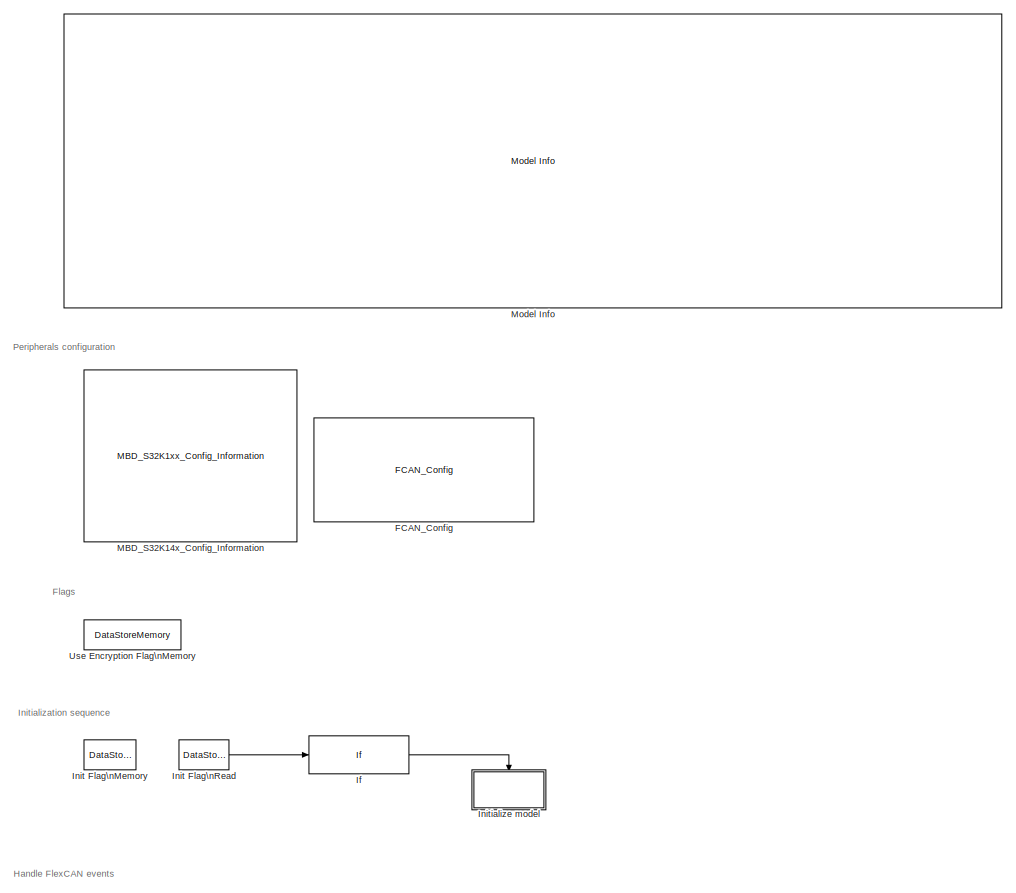
[diagram: root canvas - part 1/2, full width, top band]
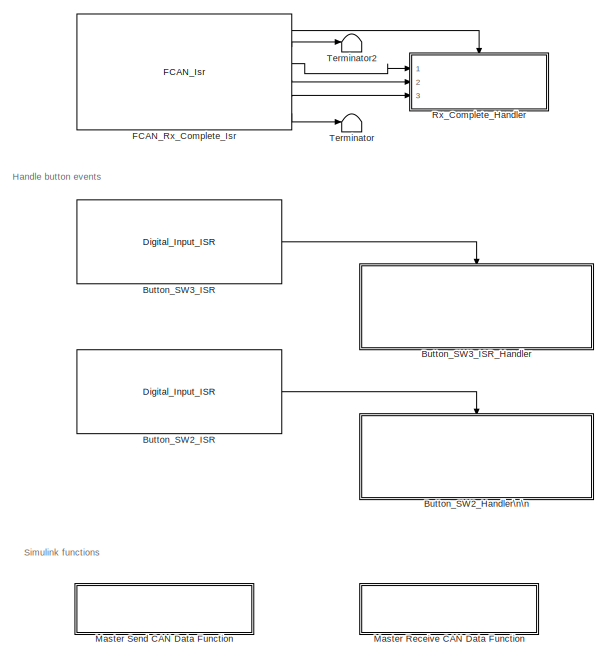
[diagram: root canvas - part 2/2, bottom left region]
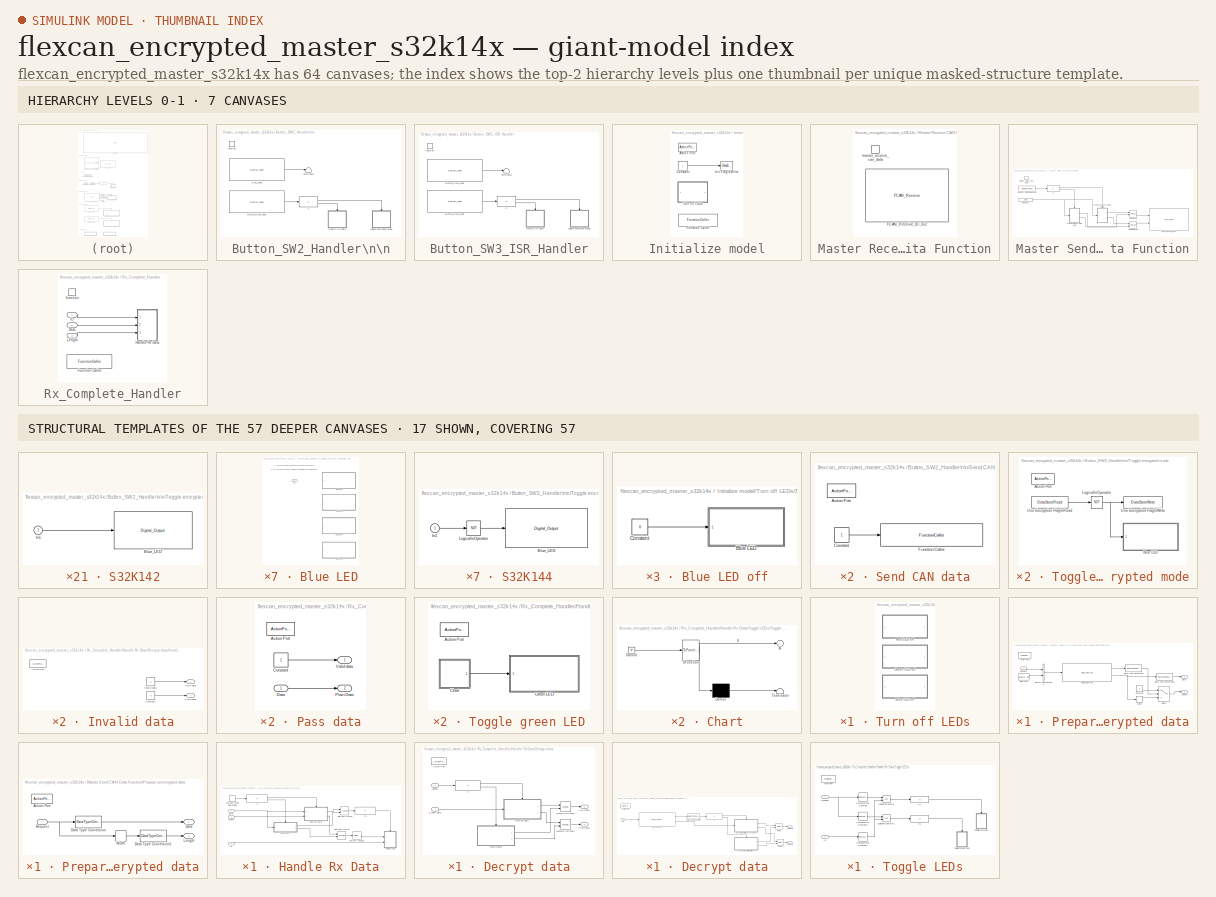
[diagram: thumbnail index - top-2 hierarchy levels (7 canvases) + 17 structural-template representatives of the remaining 57 canvases]
MODEL flexcan_encrypted_master_s32k14x
KIND model
CONFIG InitFcn = mbd_s32k_consistency_checks(bdroot(gcs));
CONFIG PreLoadFcn = mbd_s32k_examples_preload_cbk;
BLOCK [SubSystem] Button_SW2_Handler\n\n
  Ports = [0, 0, 0, 1]
  RequestExecContextInheritance = off
  SID = 522
  Variant = off
BLOCK [Reference] Button_SW2_Handler\n\n/Button_SW3_Input  REF=mbd_s32k1xx_ec_toolbox/GPIO Blocks/Digital_Input
  Ports = [0, 1]
  SID = 959
  SourceBlock = mbd_s32k1xx_ec_toolbox/GPIO Blocks/Digital_Input
  SourceType = gpio_s32k_input
  gpio_pin = PTC13: [PTC13 | Port C I/O]
  passive_filter = off
  pull_resistor = None
BLOCK [If] Button_SW2_Handler\n\n/If
  IfExpression = u1 == 1
  Ports = [1, 2]
  SID = 960
BLOCK [Reference] Button_SW2_Handler\n\n/SW2_Input  REF=mbd_s32k1xx_ec_toolbox/GPIO Blocks/Digital_Input
  Ports = [0, 1]
  SID = 665
  SourceBlock = mbd_s32k1xx_ec_toolbox/GPIO Blocks/Digital_Input
  SourceType = gpio_s32k_input
  gpio_pin = PTC12: [PTC12 | Port C I/O]
  passive_filter = off
  pull_resistor = None
BLOCK [SubSystem] Button_SW2_Handler\n\n/Send CAN data
  Ports = [0, 0, 0, 0, 0, 0, 0, 1]
  RequestExecContextInheritance = off
  SID = 961
  Variant = off
BLOCK [ActionPort] Button_SW2_Handler\n\n/Send CAN data/Action Port
  SID = 962
BLOCK [Constant] Button_SW2_Handler\n\n/Send CAN data/Constant
  OutDataTypeStr = uint8
  SID = 963
BLOCK [FunctionCaller] Button_SW2_Handler\n\n/Send CAN data/Function Caller
  FunctionPrototype = master_send_can_data(Request)
  InputArgumentSpecifications = uint8(1)
  Ports = [1]
  SID = 964
BLOCK [Terminator] Button_SW2_Handler\n\n/Terminator
  SID = 666
BLOCK [SubSystem] Button_SW2_Handler\n\n/Toggle encrypted mode
  Ports = [0, 0, 0, 0, 0, 0, 0, 1]
  RequestExecContextInheritance = off
  SID = 1113
  Variant = off
BLOCK [ActionPort] Button_SW2_Handler\n\n/Toggle encrypted mode/Action Port
  SID = 1114
BLOCK [SubSystem] Button_SW2_Handler\n\n/Toggle encrypted mode/Blue LED
  Ports = [1]
  RequestExecContextInheritance = off
  SID = 1115
  Variant = on
BLOCK [Inport] Button_SW2_Handler\n\n/Toggle encrypted mode/Blue LED/In1
  IconDisplay = Port number
  SID = 1116
BLOCK [SubSystem] Button_SW2_Handler\n\n/Toggle encrypted mode/Blue LED/S32K142
  Ports = [1]
  RequestExecContextInheritance = off
  SID = 1117
  Variant = off
  VariantControl = VSS_S32k142
BLOCK [Reference] Button_SW2_Handler\n\n/Toggle encrypted mode/Blue LED/S32K142/Blue_LED  REF=mbd_s32k1xx_ec_toolbox/GPIO Blocks/Digital_Output
  Ports = [1]
  SID = 1119
  SourceBlock = mbd_s32k1xx_ec_toolbox/GPIO Blocks/Digital_Output
  SourceType = gpio_s32k_output
  drive_strength = Low
  gpio_pin = PTD0: [PTD0 | Port D I/O]
  init_val = Low
BLOCK [Inport] Button_SW2_Handler\n\n/Toggle encrypted mode/Blue LED/S32K142/In1
  IconDisplay = Port number
  SID = 1118
BLOCK [SubSystem] Button_SW2_Handler\n\n/Toggle encrypted mode/Blue LED/S32K144
  Ports = [1]
  RequestExecContextInheritance = off
  SID = 1120
  Variant = off
  VariantControl = VSS_S32k144
BLOCK [Reference] Button_SW2_Handler\n\n/Toggle encrypted mode/Blue LED/S32K144/Blue_LED  REF=mbd_s32k1xx_ec_toolbox/GPIO Blocks/Digital_Output
  Ports = [1]
  SID = 1122
  SourceBlock = mbd_s32k1xx_ec_toolbox/GPIO Blocks/Digital_Output
  SourceType = gpio_s32k_output
  drive_strength = Low
  gpio_pin = PTD0: [PTD0 | Port D I/O]
  init_val = Low
BLOCK [Inport] Button_SW2_Handler\n\n/Toggle encrypted mode/Blue LED/S32K144/In1
  IconDisplay = Port number
  SID = 1121
BLOCK [Logic] Button_SW2_Handler\n\n/Toggle encrypted mode/Blue LED/S32K144/Logical\nOperator
  AllPortsSameDT = off
  Operator = NOT
  OutDataTypeStr = boolean
  Ports = [1, 1]
  SID = 1123
BLOCK [SubSystem] Button_SW2_Handler\n\n/Toggle encrypted mode/Blue LED/S32K146
  Ports = [1]
  RequestExecContextInheritance = off
  SID = 1124
  Variant = off
  VariantControl = VSS_S32k146
BLOCK [Reference] Button_SW2_Handler\n\n/Toggle encrypted mode/Blue LED/S32K146/Blue_LED  REF=mbd_s32k1xx_ec_toolbox/GPIO Blocks/Digital_Output
  Ports = [1]
  SID = 1126
  SourceBlock = mbd_s32k1xx_ec_toolbox/GPIO Blocks/Digital_Output
  SourceType = gpio_s32k_output
  drive_strength = Low
  gpio_pin = PTD0: [PTD0 | Port D I/O]
  init_val = Low
BLOCK [Inport] Button_SW2_Handler\n\n/Toggle encrypted mode/Blue LED/S32K146/In1
  IconDisplay = Port number
  SID = 1125
BLOCK [SubSystem] Button_SW2_Handler\n\n/Toggle encrypted mode/Blue LED/S32K148
  Ports = [1]
  RequestExecContextInheritance = off
  SID = 1127
  Variant = off
  VariantControl = VSS_S32k148
BLOCK [Reference] Button_SW2_Handler\n\n/Toggle encrypted mode/Blue LED/S32K148/Blue_LED  REF=mbd_s32k1xx_ec_toolbox/GPIO Blocks/Digital_Output
  Ports = [1]
  SID = 1129
  SourceBlock = mbd_s32k1xx_ec_toolbox/GPIO Blocks/Digital_Output
  SourceType = gpio_s32k_output
  drive_strength = Low
  gpio_pin = PTE23: [PTE23 | Port E I/O]
  init_val = Low
BLOCK [Inport] Button_SW2_Handler\n\n/Toggle encrypted mode/Blue LED/S32K148/In1
  IconDisplay = Port number
  SID = 1128
BLOCK [Logic] Button_SW2_Handler\n\n/Toggle encrypted mode/Logical\nOperator
  AllPortsSameDT = off
  Operator = NOT
  OutDataTypeStr = boolean
  Ports = [1, 1]
  SID = 1131
BLOCK [DataStoreRead] Button_SW2_Handler\n\n/Toggle encrypted mode/Use Encryption Flag\nRead
  DataStoreName = use_encryption_flag
  Ports = [0, 1]
  SID = 1132
BLOCK [DataStoreWrite] Button_SW2_Handler\n\n/Toggle encrypted mode/Use Encryption Flag\nWrite
  DataStoreName = use_encryption_flag
  Ports = [1]
  SID = 1133
BLOCK [TriggerPort] Button_SW2_Handler\n\n/function
  Ports = []
  SID = 523
  StatesWhenEnabling = held
  TriggerType = function-call
  VariantControl = Variant
BLOCK [Reference] Button_SW2_ISR  REF=mbd_s32k1xx_ec_toolbox/GPIO Blocks/Digital_Input_ISR
  Ports = [0, 1]
  SID = 481
  SourceBlock = mbd_s32k1xx_ec_toolbox/GPIO Blocks/Digital_Input_ISR
  SourceType = gpi_s32k_isr
  gpio_pin = PTC12: [PTC12 | Port C I/O]
  irqc = on rising-edge
  prio = 15
BLOCK [Reference] Button_SW3_ISR  REF=mbd_s32k1xx_ec_toolbox/GPIO Blocks/Digital_Input_ISR
  Ports = [0, 1]
  SID = 480
  SourceBlock = mbd_s32k1xx_ec_toolbox/GPIO Blocks/Digital_Input_ISR
  SourceType = gpi_s32k_isr
  gpio_pin = PTC13: [PTC13 | Port C I/O]
  irqc = on rising-edge
  prio = 15
BLOCK [SubSystem] Button_SW3_ISR_Handler
  Ports = [0, 0, 0, 1]
  RequestExecContextInheritance = off
  SID = 483
  Variant = off
BLOCK [Reference] Button_SW3_ISR_Handler/Button_SW2_Input  REF=mbd_s32k1xx_ec_toolbox/GPIO Blocks/Digital_Input
  Ports = [0, 1]
  SID = 542
  SourceBlock = mbd_s32k1xx_ec_toolbox/GPIO Blocks/Digital_Input
  SourceType = gpio_s32k_input
  gpio_pin = PTC12: [PTC12 | Port C I/O]
  passive_filter = off
  pull_resistor = None
BLOCK [Reference] Button_SW3_ISR_Handler/Button_SW3_Input  REF=mbd_s32k1xx_ec_toolbox/GPIO Blocks/Digital_Input
  Ports = [0, 1]
  SID = 663
  SourceBlock = mbd_s32k1xx_ec_toolbox/GPIO Blocks/Digital_Input
  SourceType = gpio_s32k_input
  gpio_pin = PTC13: [PTC13 | Port C I/O]
  passive_filter = off
  pull_resistor = None
BLOCK [If] Button_SW3_ISR_Handler/If
  IfExpression = u1 == 1
  Ports = [1, 2]
  SID = 543
BLOCK [SubSystem] Button_SW3_ISR_Handler/Send CAN data
  Ports = [0, 0, 0, 0, 0, 0, 0, 1]
  RequestExecContextInheritance = off
  SID = 810
  Variant = off
BLOCK [ActionPort] Button_SW3_ISR_Handler/Send CAN data/Action Port
  SID = 811
BLOCK [Constant] Button_SW3_ISR_Handler/Send CAN data/Constant
  OutDataTypeStr = uint8
  SID = 807
  Value = 0
BLOCK [FunctionCaller] Button_SW3_ISR_Handler/Send CAN data/Function Caller
  FunctionPrototype = master_send_can_data(Request)
  InputArgumentSpecifications = uint8(1)
  Ports = [1]
  SID = 885
BLOCK [Terminator] Button_SW3_ISR_Handler/Terminator
  SID = 664
BLOCK [SubSystem] Button_SW3_ISR_Handler/Toggle encrypted mode
  Ports = [0, 0, 0, 0, 0, 0, 0, 1]
  RequestExecContextInheritance = off
  SID = 1092
  Variant = off
BLOCK [ActionPort] Button_SW3_ISR_Handler/Toggle encrypted mode/Action Port
  SID = 1093
BLOCK [SubSystem] Button_SW3_ISR_Handler/Toggle encrypted mode/Blue LED
  Ports = [1]
  RequestExecContextInheritance = off
  SID = 1094
  Variant = on
BLOCK [Inport] Button_SW3_ISR_Handler/Toggle encrypted mode/Blue LED/In1
  IconDisplay = Port number
  SID = 1095
BLOCK [SubSystem] Button_SW3_ISR_Handler/Toggle encrypted mode/Blue LED/S32K142
  Ports = [1]
  RequestExecContextInheritance = off
  SID = 1096
  Variant = off
  VariantControl = VSS_S32k142
BLOCK [Reference] Button_SW3_ISR_Handler/Toggle encrypted mode/Blue LED/S32K142/Blue_LED  REF=mbd_s32k1xx_ec_toolbox/GPIO Blocks/Digital_Output
  Ports = [1]
  SID = 1098
  SourceBlock = mbd_s32k1xx_ec_toolbox/GPIO Blocks/Digital_Output
  SourceType = gpio_s32k_output
  drive_strength = Low
  gpio_pin = PTD0: [PTD0 | Port D I/O]
  init_val = Low
BLOCK [Inport] Button_SW3_ISR_Handler/Toggle encrypted mode/Blue LED/S32K142/In1
  IconDisplay = Port number
  SID = 1097
BLOCK [SubSystem] Button_SW3_ISR_Handler/Toggle encrypted mode/Blue LED/S32K144
  Ports = [1]
  RequestExecContextInheritance = off
  SID = 1099
  Variant = off
  VariantControl = VSS_S32k144
BLOCK [Reference] Button_SW3_ISR_Handler/Toggle encrypted mode/Blue LED/S32K144/Blue_LED  REF=mbd_s32k1xx_ec_toolbox/GPIO Blocks/Digital_Output
  Ports = [1]
  SID = 1101
  SourceBlock = mbd_s32k1xx_ec_toolbox/GPIO Blocks/Digital_Output
  SourceType = gpio_s32k_output
  drive_strength = Low
  gpio_pin = PTD0: [PTD0 | Port D I/O]
  init_val = Low
BLOCK [Inport] Button_SW3_ISR_Handler/Toggle encrypted mode/Blue LED/S32K144/In1
  IconDisplay = Port number
  SID = 1100
BLOCK [Logic] Button_SW3_ISR_Handler/Toggle encrypted mode/Blue LED/S32K144/Logical\nOperator
  AllPortsSameDT = off
  Operator = NOT
  OutDataTypeStr = boolean
  Ports = [1, 1]
  SID = 1102
BLOCK [SubSystem] Button_SW3_ISR_Handler/Toggle encrypted mode/Blue LED/S32K146
  Ports = [1]
  RequestExecContextInheritance = off
  SID = 1103
  Variant = off
  VariantControl = VSS_S32k146
BLOCK [Reference] Button_SW3_ISR_Handler/Toggle encrypted mode/Blue LED/S32K146/Blue_LED  REF=mbd_s32k1xx_ec_toolbox/GPIO Blocks/Digital_Output
  Ports = [1]
  SID = 1105
  SourceBlock = mbd_s32k1xx_ec_toolbox/GPIO Blocks/Digital_Output
  SourceType = gpio_s32k_output
  drive_strength = Low
  gpio_pin = PTD0: [PTD0 | Port D I/O]
  init_val = Low
BLOCK [Inport] Button_SW3_ISR_Handler/Toggle encrypted mode/Blue LED/S32K146/In1
  IconDisplay = Port number
  SID = 1104
BLOCK [SubSystem] Button_SW3_ISR_Handler/Toggle encrypted mode/Blue LED/S32K148
  Ports = [1]
  RequestExecContextInheritance = off
  SID = 1106
  Variant = off
  VariantControl = VSS_S32k148
BLOCK [Reference] Button_SW3_ISR_Handler/Toggle encrypted mode/Blue LED/S32K148/Blue_LED  REF=mbd_s32k1xx_ec_toolbox/GPIO Blocks/Digital_Output
  Ports = [1]
  SID = 1108
  SourceBlock = mbd_s32k1xx_ec_toolbox/GPIO Blocks/Digital_Output
  SourceType = gpio_s32k_output
  drive_strength = Low
  gpio_pin = PTE23: [PTE23 | Port E I/O]
  init_val = Low
BLOCK [Inport] Button_SW3_ISR_Handler/Toggle encrypted mode/Blue LED/S32K148/In1
  IconDisplay = Port number
  SID = 1107
BLOCK [Logic] Button_SW3_ISR_Handler/Toggle encrypted mode/Logical\nOperator
  AllPortsSameDT = off
  Operator = NOT
  OutDataTypeStr = boolean
  Ports = [1, 1]
  SID = 1110
BLOCK [DataStoreRead] Button_SW3_ISR_Handler/Toggle encrypted mode/Use Encryption Flag\nRead
  DataStoreName = use_encryption_flag
  Ports = [0, 1]
  SID = 1111
BLOCK [DataStoreWrite] Button_SW3_ISR_Handler/Toggle encrypted mode/Use Encryption Flag\nWrite
  DataStoreName = use_encryption_flag
  Ports = [1]
  SID = 1112
BLOCK [TriggerPort] Button_SW3_ISR_Handler/function
  Ports = []
  SID = 487
  StatesWhenEnabling = held
  TriggerType = function-call
  VariantControl = Variant
BLOCK [Reference] FCAN_Config  REF=mbd_s32k1xx_ec_toolbox/Communication Blocks/CAN Blocks/FCAN_Config
  Ports = []
  Priority = 1
  SID = 2
  SourceBlock = mbd_s32k1xx_ec_toolbox/Communication Blocks/CAN Blocks/FCAN_Config
  SourceType = fcan_s32k_config
  bitrate = 500
  bitrate_adv_opts = off
  can_cbt_presdiv = 3
  can_cbt_propseg = 27
  can_cbt_pseg1 = 5
  can_cbt_pseg2 = 5
  can_cbt_rjw = 3
  can_clk_src = Peripheral clock
  can_fd_enable = on
  can_fifo_id_filter = {'0x0', '0x0', '0x0', '0x0', '0x0', '0x0', '0x0', '0x0'}
  can_fifo_id_filter_extended = off
  can_fifo_id_filter_remote = off
  can_fifo_id_format = A
  can_idfilter_extendedid = off
  can_idfilter_id1 = 0
  can_idfilter_id2 = 0
  can_idfilter_remoteframe = off
  can_idfilter_type = Match exact
  can_instance = 0
  can_match_timeout = 1
  can_max_num_mb = 16
  can_mode = Normal mode
  can_multiple_matches_en = off
  can_num_id_filters = 8
  can_num_matches = 1
  can_payload = 8
  can_payloadfilter_dlchigh = 0
  can_payloadfilter_dlclow = 0
  can_payloadfilter_enable = on
  can_payloadfilter_payload1_b0 = 0
  can_payloadfilter_payload1_b1 = 0
  can_payloadfilter_payload1_b2 = 0
  can_payloadfilter_payload1_b3 = 0
  can_payloadfilter_payload1_b4 = 0
  can_payloadfilter_payload1_b5 = 0
  can_payloadfilter_payload1_b6 = 0
  can_payloadfilter_payload1_b7 = 0
  can_payloadfilter_payload2_b0 = 0
  can_payloadfilter_payload2_b1 = 0
  can_payloadfilter_payload2_b2 = 0
  can_payloadfilter_payload2_b3 = 0
  can_payloadfilter_payload2_b4 = 0
  can_payloadfilter_payload2_b5 = 0
  can_payloadfilter_payload2_b6 = 0
  can_payloadfilter_payload2_b7 = 0
  can_payloadfilter_type = Match exact
  can_pn_enable = off
  can_presdiv = 7
  can_propseg = 7
  can_pseg1 = 6
  can_pseg2 = 3
  can_rjw = 3
  can_rx = PTE4: [CAN0_RX | CAN Rx channel]
  can_rxfifo_enable = off
  can_timeout_en = off
  can_tx = PTE5: [CAN0_TX | CAN Tx Channel]
  can_wakeup_match = off
  can_wakeup_timeout = off
  show_adv_opts = on
BLOCK [Reference] FCAN_Rx_Complete_Isr  REF=mbd_s32k1xx_ec_toolbox/Communication Blocks/CAN Blocks/FCAN_Isr
  Ports = [0, 6]
  SID = 86
  SourceBlock = mbd_s32k1xx_ec_toolbox/Communication Blocks/CAN Blocks/FCAN_Isr
  SourceType = fcan_s32k_isr
  can_event = Rx Complete
  can_instance = 0
BLOCK [If] If
  IfExpression = u1 == 0
  Ports = [1, 1]
  SID = 144
  ShowElse = off
BLOCK [DataStoreMemory] Init Flag\nMemory
  DataStoreName = init_flag
  OutDataTypeStr = uint32
  ReadBeforeWriteMsg = warning
  SID = 138
  ShowAdditionalParam = off
  WriteAfterReadMsg = warning
  WriteAfterWriteMsg = warning
BLOCK [DataStoreRead] Init Flag\nRead
  DataStoreName = init_flag
  Ports = [0, 1]
  SID = 139
BLOCK [SubSystem] Initialize model
  Ports = [0, 0, 0, 0, 0, 0, 0, 1]
  RequestExecContextInheritance = off
  SID = 145
  TreatAsAtomicUnit = on
  Variant = off
BLOCK [ActionPort] Initialize model/Action Port
  SID = 147
BLOCK [Constant] Initialize model/Constant
  OutDataTypeStr = uint32
  SID = 462
BLOCK [FunctionCaller] Initialize model/Function Caller
  FunctionPrototype = master_receive_can_data()
  Ports = []
  Priority = 2
  SID = 886
BLOCK [DataStoreWrite] Initialize model/Init Flag\nWrite
  DataStoreName = init_flag
  Ports = [1]
  SID = 461
BLOCK [SubSystem] Initialize model/Turn off LEDs
  Ports = []
  Priority = 1
  RequestExecContextInheritance = off
  SID = 883
  Variant = off
BLOCK [SubSystem] Initialize model/Turn off LEDs/Blue LED off
  Ports = []
  RequestExecContextInheritance = off
  SID = 1038
  Variant = off
BLOCK [SubSystem] Initialize model/Turn off LEDs/Blue LED off/Blue LED
  Ports = [1]
  RequestExecContextInheritance = off
  SID = 1039
  Variant = on
BLOCK [Inport] Initialize model/Turn off LEDs/Blue LED off/Blue LED/In1
  IconDisplay = Port number
  SID = 1040
BLOCK [SubSystem] Initialize model/Turn off LEDs/Blue LED off/Blue LED/S32K142
  Ports = [1]
  RequestExecContextInheritance = off
  SID = 1041
  Variant = off
  VariantControl = VSS_S32k142
BLOCK [Reference] Initialize model/Turn off LEDs/Blue LED off/Blue LED/S32K142/Blue_LED  REF=mbd_s32k1xx_ec_toolbox/GPIO Blocks/Digital_Output
  Ports = [1]
  SID = 1043
  SourceBlock = mbd_s32k1xx_ec_toolbox/GPIO Blocks/Digital_Output
  SourceType = gpio_s32k_output
  drive_strength = Low
  gpio_pin = PTD0: [PTD0 | Port D I/O]
  init_val = Low
BLOCK [Inport] Initialize model/Turn off LEDs/Blue LED off/Blue LED/S32K142/In1
  IconDisplay = Port number
  SID = 1042
BLOCK [SubSystem] Initialize model/Turn off LEDs/Blue LED off/Blue LED/S32K144
  Ports = [1]
  RequestExecContextInheritance = off
  SID = 1044
  Variant = off
  VariantControl = VSS_S32k144
BLOCK [Reference] Initialize model/Turn off LEDs/Blue LED off/Blue LED/S32K144/Blue_LED  REF=mbd_s32k1xx_ec_toolbox/GPIO Blocks/Digital_Output
  Ports = [1]
  SID = 1046
  SourceBlock = mbd_s32k1xx_ec_toolbox/GPIO Blocks/Digital_Output
  SourceType = gpio_s32k_output
  drive_strength = Low
  gpio_pin = PTD0: [PTD0 | Port D I/O]
  init_val = Low
BLOCK [Inport] Initialize model/Turn off LEDs/Blue LED off/Blue LED/S32K144/In1
  IconDisplay = Port number
  SID = 1045
BLOCK [Logic] Initialize model/Turn off LEDs/Blue LED off/Blue LED/S32K144/Logical\nOperator
  AllPortsSameDT = off
  Operator = NOT
  OutDataTypeStr = boolean
  Ports = [1, 1]
  SID = 1047
BLOCK [SubSystem] Initialize model/Turn off LEDs/Blue LED off/Blue LED/S32K146
  Ports = [1]
  RequestExecContextInheritance = off
  SID = 1048
  Variant = off
  VariantControl = VSS_S32k146
BLOCK [Reference] Initialize model/Turn off LEDs/Blue LED off/Blue LED/S32K146/Blue_LED  REF=mbd_s32k1xx_ec_toolbox/GPIO Blocks/Digital_Output
  Ports = [1]
  SID = 1050
  SourceBlock = mbd_s32k1xx_ec_toolbox/GPIO Blocks/Digital_Output
  SourceType = gpio_s32k_output
  drive_strength = Low
  gpio_pin = PTD0: [PTD0 | Port D I/O]
  init_val = Low
BLOCK [Inport] Initialize model/Turn off LEDs/Blue LED off/Blue LED/S32K146/In1
  IconDisplay = Port number
  SID = 1049
BLOCK [SubSystem] Initialize model/Turn off LEDs/Blue LED off/Blue LED/S32K148
  Ports = [1]
  RequestExecContextInheritance = off
  SID = 1051
  Variant = off
  VariantControl = VSS_S32k148
BLOCK [Reference] Initialize model/Turn off LEDs/Blue LED off/Blue LED/S32K148/Blue_LED  REF=mbd_s32k1xx_ec_toolbox/GPIO Blocks/Digital_Output
  Ports = [1]
  SID = 1053
  SourceBlock = mbd_s32k1xx_ec_toolbox/GPIO Blocks/Digital_Output
  SourceType = gpio_s32k_output
  drive_strength = Low
  gpio_pin = PTE23: [PTE23 | Port E I/O]
  init_val = Low
BLOCK [Inport] Initialize model/Turn off LEDs/Blue LED off/Blue LED/S32K148/In1
  IconDisplay = Port number
  SID = 1052
BLOCK [Constant] Initialize model/Turn off LEDs/Blue LED off/Constant
  OutDataTypeStr = boolean
  SID = 1055
  Value = 0
BLOCK [SubSystem] Initialize model/Turn off LEDs/Green LED off
  Ports = []
  RequestExecContextInheritance = off
  SID = 1056
  Variant = off
BLOCK [Constant] Initialize model/Turn off LEDs/Green LED off/Constant
  OutDataTypeStr = boolean
  SID = 1057
  Value = 0
BLOCK [SubSystem] Initialize model/Turn off LEDs/Green LED off/Green LED
  Ports = [1]
  RequestExecContextInheritance = off
  SID = 1058
  Variant = on
BLOCK [Inport] Initialize model/Turn off LEDs/Green LED off/Green LED/In1
  IconDisplay = Port number
  SID = 1059
BLOCK [SubSystem] Initialize model/Turn off LEDs/Green LED off/Green LED/S32K142
  Ports = [1]
  RequestExecContextInheritance = off
  SID = 1060
  Variant = off
  VariantControl = VSS_S32k142
BLOCK [Reference] Initialize model/Turn off LEDs/Green LED off/Green LED/S32K142/Green_LED  REF=mbd_s32k1xx_ec_toolbox/GPIO Blocks/Digital_Output
  Ports = [1]
  SID = 1062
  SourceBlock = mbd_s32k1xx_ec_toolbox/GPIO Blocks/Digital_Output
  SourceType = gpio_s32k_output
  drive_strength = Low
  gpio_pin = PTD16: [PTD16 | Port D I/O]
  init_val = Low
BLOCK [Inport] Initialize model/Turn off LEDs/Green LED off/Green LED/S32K142/In1
  IconDisplay = Port number
  SID = 1061
BLOCK [SubSystem] Initialize model/Turn off LEDs/Green LED off/Green LED/S32K144
  Ports = [1]
  RequestExecContextInheritance = off
  SID = 1063
  Variant = off
  VariantControl = VSS_S32k144
BLOCK [Reference] Initialize model/Turn off LEDs/Green LED off/Green LED/S32K144/Green_LED  REF=mbd_s32k1xx_ec_toolbox/GPIO Blocks/Digital_Output
  Ports = [1]
  SID = 1065
  SourceBlock = mbd_s32k1xx_ec_toolbox/GPIO Blocks/Digital_Output
  SourceType = gpio_s32k_output
  drive_strength = Low
  gpio_pin = PTD16: [PTD16 | Port D I/O]
  init_val = Low
BLOCK [Inport] Initialize model/Turn off LEDs/Green LED off/Green LED/S32K144/In1
  IconDisplay = Port number
  SID = 1064
BLOCK [Logic] Initialize model/Turn off LEDs/Green LED off/Green LED/S32K144/Logical\nOperator
  AllPortsSameDT = off
  Operator = NOT
  OutDataTypeStr = boolean
  Ports = [1, 1]
  SID = 1066
BLOCK [SubSystem] Initialize model/Turn off LEDs/Green LED off/Green LED/S32K146
  Ports = [1]
  RequestExecContextInheritance = off
  SID = 1067
  Variant = off
  VariantControl = VSS_S32k146
BLOCK [Reference] Initialize model/Turn off LEDs/Green LED off/Green LED/S32K146/Green_LED  REF=mbd_s32k1xx_ec_toolbox/GPIO Blocks/Digital_Output
  Ports = [1]
  SID = 1069
  SourceBlock = mbd_s32k1xx_ec_toolbox/GPIO Blocks/Digital_Output
  SourceType = gpio_s32k_output
  drive_strength = Low
  gpio_pin = PTD16: [PTD16 | Port D I/O]
  init_val = Low
BLOCK [Inport] Initialize model/Turn off LEDs/Green LED off/Green LED/S32K146/In1
  IconDisplay = Port number
  SID = 1068
BLOCK [SubSystem] Initialize model/Turn off LEDs/Green LED off/Green LED/S32K148
  Ports = [1]
  RequestExecContextInheritance = off
  SID = 1070
  Variant = off
  VariantControl = VSS_S32k148
BLOCK [Reference] Initialize model/Turn off LEDs/Green LED off/Green LED/S32K148/Green_LED  REF=mbd_s32k1xx_ec_toolbox/GPIO Blocks/Digital_Output
  Ports = [1]
  SID = 1072
  SourceBlock = mbd_s32k1xx_ec_toolbox/GPIO Blocks/Digital_Output
  SourceType = gpio_s32k_output
  drive_strength = Low
  gpio_pin = PTE22: [PTE22 | Port E I/O]
  init_val = Low
BLOCK [Inport] Initialize model/Turn off LEDs/Green LED off/Green LED/S32K148/In1
  IconDisplay = Port number
  SID = 1071
BLOCK [SubSystem] Initialize model/Turn off LEDs/Red LED off
  Ports = []
  RequestExecContextInheritance = off
  SID = 1074
  Variant = off
BLOCK [Constant] Initialize model/Turn off LEDs/Red LED off/Constant
  OutDataTypeStr = boolean
  SID = 1075
  Value = 0
BLOCK [SubSystem] Initialize model/Turn off LEDs/Red LED off/Red LED
  Ports = [1]
  RequestExecContextInheritance = off
  SID = 1076
  Variant = on
BLOCK [Inport] Initialize model/Turn off LEDs/Red LED off/Red LED/In1
  IconDisplay = Port number
  SID = 1077
BLOCK [SubSystem] Initialize model/Turn off LEDs/Red LED off/Red LED/S32K142
  Ports = [1]
  RequestExecContextInheritance = off
  SID = 1078
  Variant = off
  VariantControl = VSS_S32k142
BLOCK [Inport] Initialize model/Turn off LEDs/Red LED off/Red LED/S32K142/In1
  IconDisplay = Port number
  SID = 1079
BLOCK [Reference] Initialize model/Turn off LEDs/Red LED off/Red LED/S32K142/Red_LED  REF=mbd_s32k1xx_ec_toolbox/GPIO Blocks/Digital_Output
  Ports = [1]
  SID = 1080
  SourceBlock = mbd_s32k1xx_ec_toolbox/GPIO Blocks/Digital_Output
  SourceType = gpio_s32k_output
  drive_strength = Low
  gpio_pin = PTD15: [PTD15 | Port D I/O]
  init_val = Low
BLOCK [SubSystem] Initialize model/Turn off LEDs/Red LED off/Red LED/S32K144
  Ports = [1]
  RequestExecContextInheritance = off
  SID = 1081
  Variant = off
  VariantControl = VSS_S32k144
BLOCK [Inport] Initialize model/Turn off LEDs/Red LED off/Red LED/S32K144/In1
  IconDisplay = Port number
  SID = 1082
BLOCK [Logic] Initialize model/Turn off LEDs/Red LED off/Red LED/S32K144/Logical\nOperator
  AllPortsSameDT = off
  Operator = NOT
  OutDataTypeStr = boolean
  Ports = [1, 1]
  SID = 1083
BLOCK [Reference] Initialize model/Turn off LEDs/Red LED off/Red LED/S32K144/Red_LED  REF=mbd_s32k1xx_ec_toolbox/GPIO Blocks/Digital_Output
  Ports = [1]
  SID = 1084
  SourceBlock = mbd_s32k1xx_ec_toolbox/GPIO Blocks/Digital_Output
  SourceType = gpio_s32k_output
  drive_strength = Low
  gpio_pin = PTD15: [PTD15 | Port D I/O]
  init_val = Low
BLOCK [SubSystem] Initialize model/Turn off LEDs/Red LED off/Red LED/S32K146
  Ports = [1]
  RequestExecContextInheritance = off
  SID = 1085
  Variant = off
  VariantControl = VSS_S32k146
BLOCK [Inport] Initialize model/Turn off LEDs/Red LED off/Red LED/S32K146/In1
  IconDisplay = Port number
  SID = 1086
BLOCK [Reference] Initialize model/Turn off LEDs/Red LED off/Red LED/S32K146/Red_LED  REF=mbd_s32k1xx_ec_toolbox/GPIO Blocks/Digital_Output
  Ports = [1]
  SID = 1087
  SourceBlock = mbd_s32k1xx_ec_toolbox/GPIO Blocks/Digital_Output
  SourceType = gpio_s32k_output
  drive_strength = Low
  gpio_pin = PTD15: [PTD15 | Port D I/O]
  init_val = Low
BLOCK [SubSystem] Initialize model/Turn off LEDs/Red LED off/Red LED/S32K148
  Ports = [1]
  RequestExecContextInheritance = off
  SID = 1088
  Variant = off
  VariantControl = VSS_S32k148
BLOCK [Inport] Initialize model/Turn off LEDs/Red LED off/Red LED/S32K148/In1
  IconDisplay = Port number
  SID = 1089
BLOCK [Reference] Initialize model/Turn off LEDs/Red LED off/Red LED/S32K148/Red_LED  REF=mbd_s32k1xx_ec_toolbox/GPIO Blocks/Digital_Output
  Ports = [1]
  SID = 1090
  SourceBlock = mbd_s32k1xx_ec_toolbox/GPIO Blocks/Digital_Output
  SourceType = gpio_s32k_output
  drive_strength = Low
  gpio_pin = PTE21: [PTE21 | Port E I/O]
  init_val = Low
BLOCK [Reference] MBD_S32K14x_Config_Information  REF=mbd_s32k1xx_ec_toolbox/MBD_S32K1xx_Config_Information
  ADC_PcrCheckEnDis = on
  AMMCLIB_PcrCheckEnDis = on
  CMP_PcrCheckEnDis = on
  CSEc_PcrCheckEnDis = on
  ConfigParams_PcrCheckEnDis = on
  FM_PcrCheckEnDis = on
  FTM_Dual_Edge_Inputs_PcrCheckEnDis = on
  FTM_Hall_Sensor_Inputs_PcrCheckEnDis = on
  FTM_Input_Edge_Inputs_PcrCheckEnDis = on
  FTM_PWM_PcrCheckEnDis = on
  FTM_Quadrature_Inputs_PcrCheckEnDis = on
  FlexCAN_PcrCheckEnDis = on
  FlexIO_PcrCheckEnDis = on
  GPIO_InputPcrCheckEnDis = on
  GPIO_OutputPcrCheckEnDis = on
  LIN_PcrCheckEnDis = on
  LPI2C_PcrCheckEnDis = on
  LPSPI_PcrCheckEnDis = on
  LPTMR_PcrCheckEnDis = on
  LPUART_PcrCheckEnDis = on
  ModelRef_PcrCheckEnDis = on
  PDB0_PcrCheckEnDis = on
  PIT_PcrCheckEnDis = on
  Ports = []
  Profile_PcrCheckEnDis = on
  RTC_PcrCheckEnDis = on
  SBC_PcrCheckEnDis = on
  SID = 1
  SourceBlock = mbd_s32k1xx_ec_toolbox/MBD_S32K1xx_Config_Information
  SourceType = MBDTBX_EC_S32K
  WDOG_PcrCheckEnDis = on
  config_params = []
  disp_str = Target : S32K144-64KB_SRAM\nPackage : 100-pin\nSystem clock : 80 MHz\nXTAL clock : External 8 MHz\nCompiler : GCC\nTarget Type : FLASH\nDownload Code after build : (COM1, 57600)\nStep Tick Interrupt Priority : 15
  ds_import_enable = on
  eDMA_PcrCheckEnDis = on
  gcc_target_assemble_opts = -mcpu=cortex-m4 -mthumb -mfloat-abi=hard -mfpu=fpv4-sp-d16 -g
  gcc_target_compile_opts = -mcpu=cortex-m4 -mthumb -mfloat-abi=hard -mfpu=fpv4-sp-d16 -O1 -g -gstrict-dwarf
  gcc_target_default_lcf = on
  gcc_target_link_opts = -mcpu=cortex-m4 -mthumb -mfloat-abi=hard -mfpu=fpv4-sp-d16
  gcc_target_user_lcf = S32K144_64_flash.ld
  ghs_target_assemble_opts = -cpu=cortexm4f -fpu=vfpv4_d16
  ghs_target_compile_opts = -cpu=cortexm4f -thumb -DARM_MATH_CM4 -fpu=vfpv4_d16 -fsingle -Ogeneral -Wundef -Wimplicit-int -Wshadow -Wtrigraphs --no_commons --gnu_asm -gnu99 -gdwarf-2 -G
  ghs_target_default_lcf = off
  ghs_target_link_opts = -cpu=cortexm4f -thumb -fpu=vfpv4_d16
  ghs_target_user_lcf = S32K144_64_flash.ld
  iar_target_assemble_opts = --cpu Cortex-M4F --thumb --fpu VFPv4_sp
  iar_target_compile_opts = --cpu=Cortex-M4F --thumb --fpu=VFPv4_sp -Ol -e --debug --dlib_config normal
  iar_target_default_lcf = off
  iar_target_link_opts = --no_exceptions --vfe --inline
  iar_target_user_lcf = S32K144_64_flash.icf
  mbdt_ver = 0
  mcu_steptick_prio = 15
  mcu_steptick_timer = LPIT Channel 0
  mcu_system_clock_freq = 80
  mcu_target_name = S32K144
  mcu_target_package = 100-LQFP
  mcu_target_sram_size = 64KB
  mcu_xtal_freq = External 8
  pil_download_enable = off
  pil_download_rate = 57600
  pil_opensda_drive = Custom
  pil_opensda_drive_custom = D
  pil_uart_instance = 0
  pil_uart_rx = PTA2: [LPUART0_RX | Receive]
  pil_uart_tx = PTA3: [LPUART0_TX | Transmit]
  rbl_com_port = Custom
  rbl_com_port_custom = COM1
  rbl_download_enable = off
  rbl_download_interface = OpenSDA
  rbl_restart_request = off
  rbl_start_delay = 5000000
  target_compiler = GCC
  target_memory = FLASH
BLOCK [SubSystem] Master Receive CAN Data Function
  Ports = [0, 0, 0, 1]
  RequestExecContextInheritance = off
  SID = 852
  TreatAsAtomicUnit = on
  Variant = off
BLOCK [Reference] Master Receive CAN Data Function/FCAN_Receive_ID_0x2  REF=mbd_s32k1xx_ec_toolbox/Communication Blocks/CAN Blocks/FCAN_Receive
  Ports = []
  SID = 197
  SourceBlock = mbd_s32k1xx_ec_toolbox/Communication Blocks/CAN Blocks/FCAN_Receive
  SourceType = fcan_s32k_receive
  can_extended_id = off
  can_fd_enable = on
  can_id = 2
  can_instance = 0
  can_is_remote = off
  can_mb_idx = 0
  can_mode = Non-blocking
  can_msg_mask = FFFFFFFF
  can_timeout_ms = 0
  can_use_rxfifo = off
  show_adv_opts = on
BLOCK [TriggerPort] Master Receive CAN Data Function/master_receive_can_data
  FunctionName = master_receive_can_data
  IsSimulinkFunction = on
  Ports = []
  SID = 853
  StatesWhenEnabling = held
  TriggerType = function-call
  VariantControl = Variant
BLOCK [SubSystem] Master Send CAN Data Function
  Ports = [0, 0, 0, 1]
  RequestExecContextInheritance = off
  SID = 841
  TreatAsAtomicUnit = on
  Variant = off
BLOCK [Merge] Master Send CAN Data Function/Data Merge
  AllowUnequalInputPortWidths = on
  Ports = [2, 1]
  SID = 801
BLOCK [Reference] Master Send CAN Data Function/FCAN_Send_ID_0x1  REF=mbd_s32k1xx_ec_toolbox/Communication Blocks/CAN Blocks/FCAN_Send
  Ports = [2]
  SID = 828
  SourceBlock = mbd_s32k1xx_ec_toolbox/Communication Blocks/CAN Blocks/FCAN_Send
  SourceType = fcan_s32k_send
  can_enable_brs = on
  can_extended_id = off
  can_fd_enable = on
  can_fd_padding = 0
  can_id = 1
  can_instance = 0
  can_is_remote = off
  can_mb_idx = 1
  can_mode = Non-blocking
  can_timeout_ms = 0
  show_adv_opts = on
BLOCK [If] Master Send CAN Data Function/If
  IfExpression = u1 == 0
  Ports = [1, 2]
  SID = 507
BLOCK [Merge] Master Send CAN Data Function/Length Merge
  Ports = [2, 1]
  SID = 802
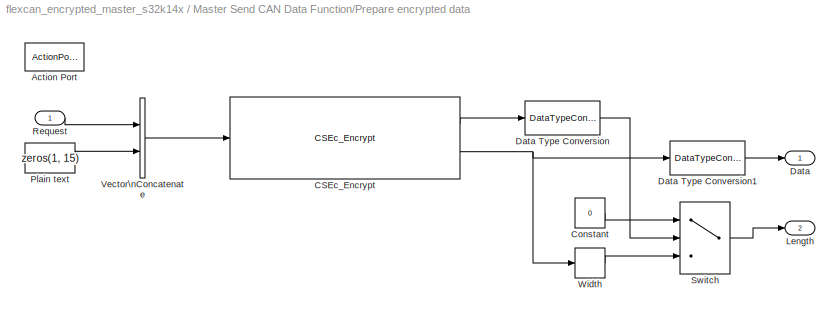
BLOCK [SubSystem] Master Send CAN Data Function/Prepare encrypted data
  Ports = [1, 2, 0, 0, 0, 0, 0, 1]
  RequestExecContextInheritance = off
  SID = 508
  Variant = off
BLOCK [ActionPort] Master Send CAN Data Function/Prepare encrypted data/Action Port
  SID = 509
BLOCK [Reference] Master Send CAN Data Function/Prepare encrypted data/CSEc_Encrypt  REF=mbd_s32k1xx_ec_toolbox/Core and System Blocks/CSEc Blocks/CSEc_Encrypt
  Ports = [1, 2]
  Priority = 2
  SID = 482
  SourceBlock = mbd_s32k1xx_ec_toolbox/Core and System Blocks/CSEc Blocks/CSEc_Encrypt
  SourceType = csec_s32k_encrypt
  csec_key_id = KEY_1
  csec_mode = Electronic Codebook (ECB)
  csec_timeout = 1
BLOCK [Constant] Master Send CAN Data Function/Prepare encrypted data/Constant
  OutDataTypeStr = uint8
  SID = 799
  Value = 0
BLOCK [Outport] Master Send CAN Data Function/Prepare encrypted data/Data
  IconDisplay = Port number
  SID = 772
BLOCK [DataTypeConversion] Master Send CAN Data Function/Prepare encrypted data/Data Type Conversion
  OutDataTypeStr = uint32
  RndMeth = Floor
  SID = 490
  SaturateOnIntegerOverflow = off
BLOCK [DataTypeConversion] Master Send CAN Data Function/Prepare encrypted data/Data Type Conversion1
  OutDataTypeStr = uint8
  RndMeth = Floor
  SID = 832
  SaturateOnIntegerOverflow = off
BLOCK [Outport] Master Send CAN Data Function/Prepare encrypted data/Length
  IconDisplay = Port number
  Port = 2
  SID = 773
BLOCK [Constant] Master Send CAN Data Function/Prepare encrypted data/Plain text
  OutDataTypeStr = uint8
  SID = 488
  Value = zeros(1, 15)
BLOCK [Inport] Master Send CAN Data Function/Prepare encrypted data/Request
  IconDisplay = Port number
  SID = 781
BLOCK [Switch] Master Send CAN Data Function/Prepare encrypted data/Switch
  Criteria = u2 ~= 0
  InputSameDT = off
  SID = 798
  SaturateOnIntegerOverflow = off
BLOCK [Concatenate] Master Send CAN Data Function/Prepare encrypted data/Vector\nConcatenate
  Ports = [2, 1]
  Priority = 1
  SID = 803
BLOCK [Width] Master Send CAN Data Function/Prepare encrypted data/Width
  DataType = uint8
  SID = 754
BLOCK [SubSystem] Master Send CAN Data Function/Prepare unencrypted data
  Ports = [1, 2, 0, 0, 0, 0, 0, 1]
  RequestExecContextInheritance = off
  SID = 510
  Variant = off
BLOCK [ActionPort] Master Send CAN Data Function/Prepare unencrypted data/Action Port
  SID = 511
BLOCK [Outport] Master Send CAN Data Function/Prepare unencrypted data/Data
  IconDisplay = Port number
  SID = 769
BLOCK [DataTypeConversion] Master Send CAN Data Function/Prepare unencrypted data/Data Type Conversion
  OutDataTypeStr = uint8
  RndMeth = Floor
  SID = 831
  SaturateOnIntegerOverflow = off
BLOCK [DataTypeConversion] Master Send CAN Data Function/Prepare unencrypted data/Data Type Conversion1
  OutDataTypeStr = uint8
  RndMeth = Floor
  SID = 849
  SaturateOnIntegerOverflow = off
BLOCK [Outport] Master Send CAN Data Function/Prepare unencrypted data/Length
  IconDisplay = Port number
  Port = 2
  SID = 770
BLOCK [Inport] Master Send CAN Data Function/Prepare unencrypted data/Request
  IconDisplay = Port number
  SID = 787
BLOCK [Width] Master Send CAN Data Function/Prepare unencrypted data/Width
  DataType = uint8
  SID = 848
BLOCK [ArgIn] Master Send CAN Data Function/Request
  ArgumentName = Request
  DisableCoverage = on
  OutDataTypeStr = uint8
  SID = 843
BLOCK [DataStoreRead] Master Send CAN Data Function/Use Encryption Flag\nRead
  DataStoreName = use_encryption_flag
  Ports = [0, 1]
  SID = 506
BLOCK [TriggerPort] Master Send CAN Data Function/master_send_can_data
  FunctionName = master_send_can_data
  IsSimulinkFunction = on
  Ports = []
  SID = 842
  StatesWhenEnabling = held
  TriggerType = function-call
  VariantControl = Variant
BLOCK [Reference] Model Info  REF=simulink/Model-Wide\nUtilities/Model Info
  DisplayStringWithTags = Model Name: %<ModelName>\n\nDescription: %<Description>
  Frame = on
  HorizontalTextAlignment = Left
  LeftAlignmentValue = 0.02
  MaskDisplayString = Model Name: flexcan_encrypted_master_s32k14x\\n\\nDescription: This model shows the usage of the FlexCAN module configured to use Flexible Data Rate and the CSEc module from the S32K14x MCUs.\\n\\nThe application will wait for frames to be received on the configured message buffer or for an event raised by pressing one of the two buttons, SW2 and SW3, which will trigger a frame send to the recipie...<+937ch>
  Ports = []
  SID = 74
  SourceBlock = simulink/Model-Wide\nUtilities/Model Info
  SourceProductBaseCode = SL
  SourceProductName = Simulink
  SourceType = CMBlock
BLOCK [SubSystem] Rx_Complete_Handler
  Ports = [3, 0, 0, 1]
  RTWSystemCode = Nonreusable function
  RequestExecContextInheritance = off
  SID = 160
  TreatAsAtomicUnit = on
  Variant = off
BLOCK [Inport] Rx_Complete_Handler/Data
  IconDisplay = Port number
  Port = 2
  SID = 563
BLOCK [FunctionCaller] Rx_Complete_Handler/Function Caller
  FunctionPrototype = master_receive_can_data()
  Ports = []
  Priority = 2
  SID = 884
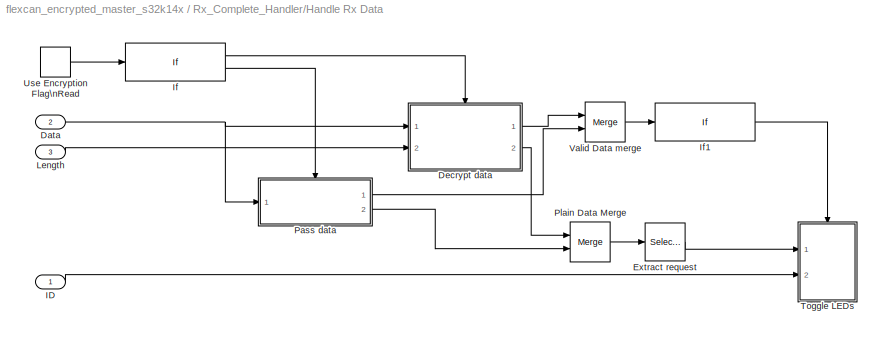
BLOCK [SubSystem] Rx_Complete_Handler/Handle Rx Data
  Ports = [3]
  Priority = 1
  RequestExecContextInheritance = off
  SID = 887
  Variant = off
BLOCK [Inport] Rx_Complete_Handler/Handle Rx Data/Data
  IconDisplay = Port number
  Port = 2
  SID = 889
BLOCK [SubSystem] Rx_Complete_Handler/Handle Rx Data/Decrypt data
  Ports = [2, 2, 0, 0, 0, 0, 0, 1]
  RequestExecContextInheritance = off
  SID = 891
  TreatAsAtomicUnit = on
  Variant = off
BLOCK [ActionPort] Rx_Complete_Handler/Handle Rx Data/Decrypt data/Action Port
  SID = 894
BLOCK [Inport] Rx_Complete_Handler/Handle Rx Data/Decrypt data/Cipher data
  IconDisplay = Port number
  SID = 892
BLOCK [SubSystem] Rx_Complete_Handler/Handle Rx Data/Decrypt data/Decrypt data
  Ports = [1, 2, 0, 0, 0, 0, 0, 1]
  RequestExecContextInheritance = off
  SID = 895
  Variant = off
BLOCK [ActionPort] Rx_Complete_Handler/Handle Rx Data/Decrypt data/Decrypt data/Action Port
  SID = 897
BLOCK [Reference] Rx_Complete_Handler/Handle Rx Data/Decrypt data/Decrypt data/CSEc_Decrypt  REF=mbd_s32k1xx_ec_toolbox/Core and System Blocks/CSEc Blocks/CSEc_Decrypt
  Ports = [1, 2]
  SID = 898
  SourceBlock = mbd_s32k1xx_ec_toolbox/Core and System Blocks/CSEc Blocks/CSEc_Decrypt
  SourceType = csec_s32k_decrypt
  csec_key_id = KEY_1
  csec_mode = Electronic Codebook (ECB)
  csec_timeout = 1
BLOCK [DataTypeConversion] Rx_Complete_Handler/Handle Rx Data/Decrypt data/Decrypt data/Data Type Conversion
  OutDataTypeStr = uint32
  RndMeth = Floor
  SID = 899
  SaturateOnIntegerOverflow = off
BLOCK [SubSystem] Rx_Complete_Handler/Handle Rx Data/Decrypt data/Decrypt data/Decrypt operation failed
  Ports = [0, 2, 0, 0, 0, 0, 0, 1]
  RequestExecContextInheritance = off
  SID = 906
  Variant = off
BLOCK [ActionPort] Rx_Complete_Handler/Handle Rx Data/Decrypt data/Decrypt data/Decrypt operation failed/Action Port
  SID = 907
BLOCK [Constant] Rx_Complete_Handler/Handle Rx Data/Decrypt data/Decrypt data/Decrypt operation failed/Constant
  OutDataTypeStr = uint8
  SID = 908
  Value = 0
BLOCK [Constant] Rx_Complete_Handler/Handle Rx Data/Decrypt data/Decrypt data/Decrypt operation failed/Invalid data
  OutDataTypeStr = boolean
  SID = 909
BLOCK [Outport] Rx_Complete_Handler/Handle Rx Data/Decrypt data/Decrypt data/Decrypt operation failed/Plain data
  IconDisplay = Port number
  InitialOutput = 0
  Port = 2
  SID = 911
BLOCK [Outport] Rx_Complete_Handler/Handle Rx Data/Decrypt data/Decrypt data/Decrypt operation failed/Valid data
  IconDisplay = Port number
  InitialOutput = 0
  SID = 910
BLOCK [SubSystem] Rx_Complete_Handler/Handle Rx Data/Decrypt data/Decrypt data/Decrypt operation succeeded
  Ports = [1, 2, 0, 0, 0, 0, 0, 1]
  RequestExecContextInheritance = off
  SID = 900
  Variant = off
BLOCK [ActionPort] Rx_Complete_Handler/Handle Rx Data/Decrypt data/Decrypt data/Decrypt operation succeeded/Action Port
  SID = 902
BLOCK [Inport] Rx_Complete_Handler/Handle Rx Data/Decrypt data/Decrypt data/Decrypt operation succeeded/In1
  IconDisplay = Port number
  SID = 901
BLOCK [Constant] Rx_Complete_Handler/Handle Rx Data/Decrypt data/Decrypt data/Decrypt operation succeeded/Invalid data
  OutDataTypeStr = boolean
  SID = 903
BLOCK [Outport] Rx_Complete_Handler/Handle Rx Data/Decrypt data/Decrypt data/Decrypt operation succeeded/Plain data
  IconDisplay = Port number
  Port = 2
  SID = 905
BLOCK [Outport] Rx_Complete_Handler/Handle Rx Data/Decrypt data/Decrypt data/Decrypt operation succeeded/Valid data
  IconDisplay = Port number
  InitialOutput = 0
  SID = 904
BLOCK [If] Rx_Complete_Handler/Handle Rx Data/Decrypt data/Decrypt data/If
  IfExpression = u1 == 0
  Ports = [1, 2]
  SID = 912
BLOCK [Inport] Rx_Complete_Handler/Handle Rx Data/Decrypt data/Decrypt data/In1
  IconDisplay = Port number
  SID = 896
BLOCK [Merge] Rx_Complete_Handler/Handle Rx Data/Decrypt data/Decrypt data/Merge
  Ports = [2, 1]
  SID = 913
BLOCK [Merge] Rx_Complete_Handler/Handle Rx Data/Decrypt data/Decrypt data/Merge1
  AllowUnequalInputPortWidths = on
  Ports = [2, 1]
  SID = 914
BLOCK [Outport] Rx_Complete_Handler/Handle Rx Data/Decrypt data/Decrypt data/Plain data
  IconDisplay = Port number
  InitialOutput = 0
  Port = 2
  SID = 916
BLOCK [Outport] Rx_Complete_Handler/Handle Rx Data/Decrypt data/Decrypt data/Valid data
  IconDisplay = Port number
  SID = 915
BLOCK [If] Rx_Complete_Handler/Handle Rx Data/Decrypt data/If
  IfExpression = u1 == 16
  Ports = [1, 2]
  SID = 917
BLOCK [SubSystem] Rx_Complete_Handler/Handle Rx Data/Decrypt data/Invalid data
  Ports = [0, 2, 0, 0, 0, 0, 0, 1]
  RequestExecContextInheritance = off
  SID = 918
  Variant = off
BLOCK [ActionPort] Rx_Complete_Handler/Handle Rx Data/Decrypt data/Invalid data/Action Port
  SID = 919
BLOCK [Constant] Rx_Complete_Handler/Handle Rx Data/Decrypt data/Invalid data/Constant1
  OutDataTypeStr = uint8
  SID = 920
  Value = 0
BLOCK [Constant] Rx_Complete_Handler/Handle Rx Data/Decrypt data/Invalid data/Invalid data
  OutDataTypeStr = boolean
  SID = 921
  Value = 0
BLOCK [Outport] Rx_Complete_Handler/Handle Rx Data/Decrypt data/Invalid data/Plain data
  IconDisplay = Port number
  InitialOutput = 0
  Port = 2
  SID = 923
BLOCK [Outport] Rx_Complete_Handler/Handle Rx Data/Decrypt data/Invalid data/Valid data
  IconDisplay = Port number
  InitialOutput = 0
  SID = 922
BLOCK [Inport] Rx_Complete_Handler/Handle Rx Data/Decrypt data/Length
  IconDisplay = Port number
  Port = 2
  SID = 893
BLOCK [Merge] Rx_Complete_Handler/Handle Rx Data/Decrypt data/Merge Plain data
  AllowUnequalInputPortWidths = on
  Ports = [2, 1]
  SID = 924
BLOCK [Merge] Rx_Complete_Handler/Handle Rx Data/Decrypt data/Merge Valid data
  Ports = [2, 1]
  SID = 925
BLOCK [Outport] Rx_Complete_Handler/Handle Rx Data/Decrypt data/Plain data
  IconDisplay = Port number
  Port = 2
  SID = 927
BLOCK [Outport] Rx_Complete_Handler/Handle Rx Data/Decrypt data/Valid data
  IconDisplay = Port number
  SID = 926
BLOCK [Selector] Rx_Complete_Handler/Handle Rx Data/Extract request
  IndexOptions = Index vector (dialog)
  Indices = [1]
  OutputSizes = 1
  Ports = [1, 1]
  SID = 928
BLOCK [Inport] Rx_Complete_Handler/Handle Rx Data/ID
  IconDisplay = Port number
  SID = 888
BLOCK [If] Rx_Complete_Handler/Handle Rx Data/If
  IfExpression = u1 == 1
  Ports = [1, 2]
  SID = 929
BLOCK [If] Rx_Complete_Handler/Handle Rx Data/If1
  IfExpression = u1 == 1
  Ports = [1, 1]
  SID = 930
  ShowElse = off
BLOCK [Inport] Rx_Complete_Handler/Handle Rx Data/Length
  IconDisplay = Port number
  Port = 3
  SID = 890
BLOCK [SubSystem] Rx_Complete_Handler/Handle Rx Data/Pass data
  Ports = [1, 2, 0, 0, 0, 0, 0, 1]
  RequestExecContextInheritance = off
  SID = 931
  TreatAsAtomicUnit = on
  Variant = off
BLOCK [ActionPort] Rx_Complete_Handler/Handle Rx Data/Pass data/Action Port
  SID = 933
BLOCK [Constant] Rx_Complete_Handler/Handle Rx Data/Pass data/Constant
  OutDataTypeStr = boolean
  SID = 934
BLOCK [Inport] Rx_Complete_Handler/Handle Rx Data/Pass data/Data
  IconDisplay = Port number
  SID = 932
BLOCK [Outport] Rx_Complete_Handler/Handle Rx Data/Pass data/Plain Data
  IconDisplay = Port number
  Port = 2
  SID = 936
BLOCK [Outport] Rx_Complete_Handler/Handle Rx Data/Pass data/Valid data
  IconDisplay = Port number
  InitialOutput = 1
  SID = 935
BLOCK [Merge] Rx_Complete_Handler/Handle Rx Data/Plain Data Merge
  AllowUnequalInputPortWidths = on
  Ports = [2, 1]
  SID = 937
BLOCK [SubSystem] Rx_Complete_Handler/Handle Rx Data/Toggle LEDs
  Ports = [2, 0, 0, 0, 0, 0, 0, 1]
  RequestExecContextInheritance = off
  SID = 938
  Variant = off
BLOCK [ActionPort] Rx_Complete_Handler/Handle Rx Data/Toggle LEDs/Action Port
  SID = 941
BLOCK [Reference] Rx_Complete_Handler/Handle Rx Data/Toggle LEDs/Compare\nTo Constant  REF=simulink/Logic and Bit\nOperations/Compare\nTo Constant
  OutDataTypeStr = boolean
  Ports = [1, 1]
  SID = 942
  SourceBlock = simulink/Logic and Bit\nOperations/Compare\nTo Constant
  SourceProductBaseCode = SL
  SourceProductName = Simulink
  SourceType = Compare To Constant
  ZeroCross = on
  const = 0
  relop = ==
BLOCK [Reference] Rx_Complete_Handler/Handle Rx Data/Toggle LEDs/Compare\nTo Constant1  REF=simulink/Logic and Bit\nOperations/Compare\nTo Constant
  OutDataTypeStr = boolean
  Ports = [1, 1]
  SID = 943
  SourceBlock = simulink/Logic and Bit\nOperations/Compare\nTo Constant
  SourceProductBaseCode = SL
  SourceProductName = Simulink
  SourceType = Compare To Constant
  ZeroCross = on
  const = 2
  relop = ==
BLOCK [Reference] Rx_Complete_Handler/Handle Rx Data/Toggle LEDs/Compare\nTo Constant2  REF=simulink/Logic and Bit\nOperations/Compare\nTo Constant
  OutDataTypeStr = boolean
  Ports = [1, 1]
  SID = 944
  SourceBlock = simulink/Logic and Bit\nOperations/Compare\nTo Constant
  SourceProductBaseCode = SL
  SourceProductName = Simulink
  SourceType = Compare To Constant
  ZeroCross = on
  const = 1
  relop = ==
BLOCK [Inport] Rx_Complete_Handler/Handle Rx Data/Toggle LEDs/ID
  IconDisplay = Port number
  Port = 2
  SID = 940
BLOCK [If] Rx_Complete_Handler/Handle Rx Data/Toggle LEDs/If1
  IfExpression = u1 == 1
  Ports = [1, 1]
  SID = 945
  ShowElse = off
BLOCK [If] Rx_Complete_Handler/Handle Rx Data/Toggle LEDs/If2
  IfExpression = u1 == 1
  Ports = [1, 1]
  SID = 946
  ShowElse = off
BLOCK [Logic] Rx_Complete_Handler/Handle Rx Data/Toggle LEDs/Logical\nOperator
  AllPortsSameDT = off
  OutDataTypeStr = boolean
  Ports = [2, 1]
  SID = 947
BLOCK [Logic] Rx_Complete_Handler/Handle Rx Data/Toggle LEDs/Logical\nOperator1
  AllPortsSameDT = off
  OutDataTypeStr = boolean
  Ports = [2, 1]
  SID = 948
BLOCK [Inport] Rx_Complete_Handler/Handle Rx Data/Toggle LEDs/Request
  IconDisplay = Port number
  OutDataTypeStr = uint8
  SID = 939
BLOCK [SubSystem] Rx_Complete_Handler/Handle Rx Data/Toggle LEDs/Toggle green LED
  Ports = [0, 0, 0, 0, 0, 0, 0, 1]
  RequestExecContextInheritance = off
  SID = 949
  Variant = off
BLOCK [ActionPort] Rx_Complete_Handler/Handle Rx Data/Toggle LEDs/Toggle green LED/Action Port
  SID = 950
BLOCK [SubSystem] Rx_Complete_Handler/Handle Rx Data/Toggle LEDs/Toggle green LED/Chart
  ErrorFcn = Stateflow.Translate.translate
  PermitHierarchicalResolution = ExplicitOnly
  Ports = [0, 1]
  RequestExecContextInheritance = off
  SFBlockType = Chart
  SID = 1134
  TreatAsAtomicUnit = on
  Variant = off
BLOCK [Outport] Rx_Complete_Handler/Handle Rx Data/Toggle LEDs/Toggle green LED/Chart/ A
  IconDisplay = Port number
  SID = 1134::36
BLOCK [Demux] Rx_Complete_Handler/Handle Rx Data/Toggle LEDs/Toggle green LED/Chart/ Demux 
  Outputs = 1
  Ports = [1, 1]
  SID = 1134::42
BLOCK [Ground] Rx_Complete_Handler/Handle Rx Data/Toggle LEDs/Toggle green LED/Chart/ Ground 
  SID = 1134::44
BLOCK [S-Function] Rx_Complete_Handler/Handle Rx Data/Toggle LEDs/Toggle green LED/Chart/ SFunction 
  EnableBusSupport = off
  FunctionName = sf_sfun
  PortCounts = [1 2]
  Ports = [1, 2]
  SFcnIsStateOwnerBlock = off
  SFunctionDeploymentMode = off
  SID = 1134::41
  Tag = Stateflow S-Function flexcan_encrypted_master_s32k14x 1
BLOCK [Terminator] Rx_Complete_Handler/Handle Rx Data/Toggle LEDs/Toggle green LED/Chart/ Terminator 
  SID = 1134::43
BLOCK [SubSystem] Rx_Complete_Handler/Handle Rx Data/Toggle LEDs/Toggle green LED/Green LED
  Ports = [1]
  RequestExecContextInheritance = off
  SID = 972
  Variant = on
BLOCK [Inport] Rx_Complete_Handler/Handle Rx Data/Toggle LEDs/Toggle green LED/Green LED/In1
  IconDisplay = Port number
  SID = 973
BLOCK [SubSystem] Rx_Complete_Handler/Handle Rx Data/Toggle LEDs/Toggle green LED/Green LED/S32K142
  Ports = [1]
  RequestExecContextInheritance = off
  SID = 974
  Variant = off
  VariantControl = VSS_S32k142
BLOCK [Reference] Rx_Complete_Handler/Handle Rx Data/Toggle LEDs/Toggle green LED/Green LED/S32K142/Green_LED  REF=mbd_s32k1xx_ec_toolbox/GPIO Blocks/Digital_Output
  Ports = [1]
  SID = 976
  SourceBlock = mbd_s32k1xx_ec_toolbox/GPIO Blocks/Digital_Output
  SourceType = gpio_s32k_output
  drive_strength = Low
  gpio_pin = PTD16: [PTD16 | Port D I/O]
  init_val = Low
BLOCK [Inport] Rx_Complete_Handler/Handle Rx Data/Toggle LEDs/Toggle green LED/Green LED/S32K142/In1
  IconDisplay = Port number
  SID = 975
BLOCK [SubSystem] Rx_Complete_Handler/Handle Rx Data/Toggle LEDs/Toggle green LED/Green LED/S32K144
  Ports = [1]
  RequestExecContextInheritance = off
  SID = 977
  Variant = off
  VariantControl = VSS_S32k144
BLOCK [Reference] Rx_Complete_Handler/Handle Rx Data/Toggle LEDs/Toggle green LED/Green LED/S32K144/Green_LED  REF=mbd_s32k1xx_ec_toolbox/GPIO Blocks/Digital_Output
  Ports = [1]
  SID = 979
  SourceBlock = mbd_s32k1xx_ec_toolbox/GPIO Blocks/Digital_Output
  SourceType = gpio_s32k_output
  drive_strength = Low
  gpio_pin = PTD16: [PTD16 | Port D I/O]
  init_val = Low
BLOCK [Inport] Rx_Complete_Handler/Handle Rx Data/Toggle LEDs/Toggle green LED/Green LED/S32K144/In1
  IconDisplay = Port number
  SID = 978
BLOCK [Logic] Rx_Complete_Handler/Handle Rx Data/Toggle LEDs/Toggle green LED/Green LED/S32K144/Logical\nOperator
  AllPortsSameDT = off
  Operator = NOT
  OutDataTypeStr = boolean
  Ports = [1, 1]
  SID = 980
BLOCK [SubSystem] Rx_Complete_Handler/Handle Rx Data/Toggle LEDs/Toggle green LED/Green LED/S32K146
  Ports = [1]
  RequestExecContextInheritance = off
  SID = 981
  Variant = off
  VariantControl = VSS_S32k146
BLOCK [Reference] Rx_Complete_Handler/Handle Rx Data/Toggle LEDs/Toggle green LED/Green LED/S32K146/Green_LED  REF=mbd_s32k1xx_ec_toolbox/GPIO Blocks/Digital_Output
  Ports = [1]
  SID = 983
  SourceBlock = mbd_s32k1xx_ec_toolbox/GPIO Blocks/Digital_Output
  SourceType = gpio_s32k_output
  drive_strength = Low
  gpio_pin = PTD16: [PTD16 | Port D I/O]
  init_val = Low
BLOCK [Inport] Rx_Complete_Handler/Handle Rx Data/Toggle LEDs/Toggle green LED/Green LED/S32K146/In1
  IconDisplay = Port number
  SID = 982
BLOCK [SubSystem] Rx_Complete_Handler/Handle Rx Data/Toggle LEDs/Toggle green LED/Green LED/S32K148
  Ports = [1]
  RequestExecContextInheritance = off
  SID = 984
  Variant = off
  VariantControl = VSS_S32k148
BLOCK [Reference] Rx_Complete_Handler/Handle Rx Data/Toggle LEDs/Toggle green LED/Green LED/S32K148/Green_LED  REF=mbd_s32k1xx_ec_toolbox/GPIO Blocks/Digital_Output
  Ports = [1]
  SID = 986
  SourceBlock = mbd_s32k1xx_ec_toolbox/GPIO Blocks/Digital_Output
  SourceType = gpio_s32k_output
  drive_strength = Low
  gpio_pin = PTE22: [PTE22 | Port E I/O]
  init_val = Low
BLOCK [Inport] Rx_Complete_Handler/Handle Rx Data/Toggle LEDs/Toggle green LED/Green LED/S32K148/In1
  IconDisplay = Port number
  SID = 985
BLOCK [SubSystem] Rx_Complete_Handler/Handle Rx Data/Toggle LEDs/Toggle red LED
  Ports = [0, 0, 0, 0, 0, 0, 0, 1]
  RequestExecContextInheritance = off
  SID = 953
  Variant = off
BLOCK [ActionPort] Rx_Complete_Handler/Handle Rx Data/Toggle LEDs/Toggle red LED/Action Port
  SID = 954
BLOCK [SubSystem] Rx_Complete_Handler/Handle Rx Data/Toggle LEDs/Toggle red LED/Chart
  ErrorFcn = Stateflow.Translate.translate
  PermitHierarchicalResolution = ExplicitOnly
  Ports = [0, 1]
  RequestExecContextInheritance = off
  SFBlockType = Chart
  SID = 1135
  TreatAsAtomicUnit = on
  Variant = off
BLOCK [Outport] Rx_Complete_Handler/Handle Rx Data/Toggle LEDs/Toggle red LED/Chart/ A
  IconDisplay = Port number
  SID = 1135::36
BLOCK [Demux] Rx_Complete_Handler/Handle Rx Data/Toggle LEDs/Toggle red LED/Chart/ Demux 
  Outputs = 1
  Ports = [1, 1]
  SID = 1135::42
BLOCK [Ground] Rx_Complete_Handler/Handle Rx Data/Toggle LEDs/Toggle red LED/Chart/ Ground 
  SID = 1135::44
BLOCK [S-Function] Rx_Complete_Handler/Handle Rx Data/Toggle LEDs/Toggle red LED/Chart/ SFunction 
  EnableBusSupport = off
  FunctionName = sf_sfun
  PortCounts = [1 2]
  Ports = [1, 2]
  SFcnIsStateOwnerBlock = off
  SFunctionDeploymentMode = off
  SID = 1135::41
  Tag = Stateflow S-Function flexcan_encrypted_master_s32k14x 2
BLOCK [Terminator] Rx_Complete_Handler/Handle Rx Data/Toggle LEDs/Toggle red LED/Chart/ Terminator 
  SID = 1135::43
BLOCK [SubSystem] Rx_Complete_Handler/Handle Rx Data/Toggle LEDs/Toggle red LED/Red LED
  Ports = [1]
  RequestExecContextInheritance = off
  SID = 988
  Variant = on
BLOCK [Inport] Rx_Complete_Handler/Handle Rx Data/Toggle LEDs/Toggle red LED/Red LED/In1
  IconDisplay = Port number
  SID = 989
BLOCK [SubSystem] Rx_Complete_Handler/Handle Rx Data/Toggle LEDs/Toggle red LED/Red LED/S32K142
  Ports = [1]
  RequestExecContextInheritance = off
  SID = 990
  Variant = off
  VariantControl = VSS_S32k142
BLOCK [Inport] Rx_Complete_Handler/Handle Rx Data/Toggle LEDs/Toggle red LED/Red LED/S32K142/In1
  IconDisplay = Port number
  SID = 991
BLOCK [Reference] Rx_Complete_Handler/Handle Rx Data/Toggle LEDs/Toggle red LED/Red LED/S32K142/Red_LED  REF=mbd_s32k1xx_ec_toolbox/GPIO Blocks/Digital_Output
  Ports = [1]
  SID = 992
  SourceBlock = mbd_s32k1xx_ec_toolbox/GPIO Blocks/Digital_Output
  SourceType = gpio_s32k_output
  drive_strength = Low
  gpio_pin = PTD15: [PTD15 | Port D I/O]
  init_val = Low
BLOCK [SubSystem] Rx_Complete_Handler/Handle Rx Data/Toggle LEDs/Toggle red LED/Red LED/S32K144
  Ports = [1]
  RequestExecContextInheritance = off
  SID = 993
  Variant = off
  VariantControl = VSS_S32k144
BLOCK [Inport] Rx_Complete_Handler/Handle Rx Data/Toggle LEDs/Toggle red LED/Red LED/S32K144/In1
  IconDisplay = Port number
  SID = 994
BLOCK [Logic] Rx_Complete_Handler/Handle Rx Data/Toggle LEDs/Toggle red LED/Red LED/S32K144/Logical\nOperator
  AllPortsSameDT = off
  Operator = NOT
  OutDataTypeStr = boolean
  Ports = [1, 1]
  SID = 995
BLOCK [Reference] Rx_Complete_Handler/Handle Rx Data/Toggle LEDs/Toggle red LED/Red LED/S32K144/Red_LED  REF=mbd_s32k1xx_ec_toolbox/GPIO Blocks/Digital_Output
  Ports = [1]
  SID = 996
  SourceBlock = mbd_s32k1xx_ec_toolbox/GPIO Blocks/Digital_Output
  SourceType = gpio_s32k_output
  drive_strength = Low
  gpio_pin = PTD15: [PTD15 | Port D I/O]
  init_val = Low
BLOCK [SubSystem] Rx_Complete_Handler/Handle Rx Data/Toggle LEDs/Toggle red LED/Red LED/S32K146
  Ports = [1]
  RequestExecContextInheritance = off
  SID = 997
  Variant = off
  VariantControl = VSS_S32k146
BLOCK [Inport] Rx_Complete_Handler/Handle Rx Data/Toggle LEDs/Toggle red LED/Red LED/S32K146/In1
  IconDisplay = Port number
  SID = 998
BLOCK [Reference] Rx_Complete_Handler/Handle Rx Data/Toggle LEDs/Toggle red LED/Red LED/S32K146/Red_LED  REF=mbd_s32k1xx_ec_toolbox/GPIO Blocks/Digital_Output
  Ports = [1]
  SID = 999
  SourceBlock = mbd_s32k1xx_ec_toolbox/GPIO Blocks/Digital_Output
  SourceType = gpio_s32k_output
  drive_strength = Low
  gpio_pin = PTD15: [PTD15 | Port D I/O]
  init_val = Low
BLOCK [SubSystem] Rx_Complete_Handler/Handle Rx Data/Toggle LEDs/Toggle red LED/Red LED/S32K148
  Ports = [1]
  RequestExecContextInheritance = off
  SID = 1000
  Variant = off
  VariantControl = VSS_S32k148
BLOCK [Inport] Rx_Complete_Handler/Handle Rx Data/Toggle LEDs/Toggle red LED/Red LED/S32K148/In1
  IconDisplay = Port number
  SID = 1001
BLOCK [Reference] Rx_Complete_Handler/Handle Rx Data/Toggle LEDs/Toggle red LED/Red LED/S32K148/Red_LED  REF=mbd_s32k1xx_ec_toolbox/GPIO Blocks/Digital_Output
  Ports = [1]
  SID = 1002
  SourceBlock = mbd_s32k1xx_ec_toolbox/GPIO Blocks/Digital_Output
  SourceType = gpio_s32k_output
  drive_strength = Low
  gpio_pin = PTE21: [PTE21 | Port E I/O]
  init_val = Low
BLOCK [DataStoreRead] Rx_Complete_Handler/Handle Rx Data/Use Encryption Flag\nRead
  DataStoreName = use_encryption_flag
  Ports = [0, 1]
  SID = 957
BLOCK [Merge] Rx_Complete_Handler/Handle Rx Data/Valid Data merge
  AllowUnequalInputPortWidths = on
  Ports = [2, 1]
  SID = 958
BLOCK [Inport] Rx_Complete_Handler/ID
  IconDisplay = Port number
  SID = 175
BLOCK [Inport] Rx_Complete_Handler/Length
  IconDisplay = Port number
  Port = 3
  SID = 758
BLOCK [TriggerPort] Rx_Complete_Handler/function
  Ports = []
  SID = 161
  StatesWhenEnabling = held
  TriggerType = function-call
  VariantControl = Variant
BLOCK [Terminator] Terminator
  SID = 473
BLOCK [Terminator] Terminator2
  SID = 475
BLOCK [DataStoreMemory] Use Encryption Flag\nMemory
  DataStoreName = use_encryption_flag
  ReadBeforeWriteMsg = warning
  SID = 505
  ShowAdditionalParam = off
  WriteAfterReadMsg = warning
  WriteAfterWriteMsg = warning
ANNOTATION (root): Flags
ANNOTATION (root): Handle FlexCAN events
ANNOTATION (root): Handle button events
ANNOTATION (root): Initialization sequence
ANNOTATION (root): Peripherals configuration
ANNOTATION (root): Simulink functions
ANNOTATION Button_SW2_Handler\n\n/Toggle encrypted mode/Blue LED: \n \n 1) Add Subsystem or Model blocks as valid variant choices. \n 2) You cannot connect blocks at this level. At simulation, connectivity is automatically \n determined, based on the active variant and port name matching.
ANNOTATION Button_SW3_ISR_Handler/Toggle encrypted mode/Blue LED: \n \n 1) Add Subsystem or Model blocks as valid variant choices. \n 2) You cannot connect blocks at this level. At simulation, connectivity is automatically \n determined, based on the active variant and port name matching.
ANNOTATION Initialize model/Turn off LEDs/Blue LED off/Blue LED: \n \n 1) Add Subsystem or Model blocks as valid variant choices. \n 2) You cannot connect blocks at this level. At simulation, connectivity is automatically \n determined, based on the active variant and port name matching.
ANNOTATION Initialize model/Turn off LEDs/Green LED off/Green LED: \n \n 1) Add Subsystem or Model blocks as valid variant choices. \n 2) You cannot connect blocks at this level. At simulation, connectivity is automatically \n determined, based on the active variant and port name matching.
ANNOTATION Initialize model/Turn off LEDs/Red LED off/Red LED: \n \n 1) Add Subsystem or Model blocks as valid variant choices. \n 2) You cannot connect blocks at this level. At simulation, connectivity is automatically \n determined, based on the active variant and port name matching.
ANNOTATION Rx_Complete_Handler/Handle Rx Data/Toggle LEDs/Toggle green LED/Green LED: \n \n 1) Add Subsystem or Model blocks as valid variant choices. \n 2) You cannot connect blocks at this level. At simulation, connectivity is automatically \n determined, based on the active variant and port name matching.
ANNOTATION Rx_Complete_Handler/Handle Rx Data/Toggle LEDs/Toggle red LED/Red LED: \n \n 1) Add Subsystem or Model blocks as valid variant choices. \n 2) You cannot connect blocks at this level. At simulation, connectivity is automatically \n determined, based on the active variant and port name matching.
LINE Button_SW2_Handler\n\n/Button_SW3_Input:1 -> Button_SW2_Handler\n\n/If:1
LINE Button_SW2_Handler\n\n/If:1 -> Button_SW2_Handler\n\n/Toggle encrypted mode:ifaction
LINE Button_SW2_Handler\n\n/If:2 -> Button_SW2_Handler\n\n/Send CAN data:ifaction
LINE Button_SW2_Handler\n\n/SW2_Input:1 -> Button_SW2_Handler\n\n/Terminator:1
LINE Button_SW2_Handler\n\n/Send CAN data/Constant:1 -> Button_SW2_Handler\n\n/Send CAN data/Function Caller:1
LINE Button_SW2_Handler\n\n/Toggle encrypted mode/Blue LED/S32K142/In1:1 -> Button_SW2_Handler\n\n/Toggle encrypted mode/Blue LED/S32K142/Blue_LED:1
LINE Button_SW2_Handler\n\n/Toggle encrypted mode/Blue LED/S32K144/In1:1 -> Button_SW2_Handler\n\n/Toggle encrypted mode/Blue LED/S32K144/Logical\nOperator:1
LINE Button_SW2_Handler\n\n/Toggle encrypted mode/Blue LED/S32K144/Logical\nOperator:1 -> Button_SW2_Handler\n\n/Toggle encrypted mode/Blue LED/S32K144/Blue_LED:1
LINE Button_SW2_Handler\n\n/Toggle encrypted mode/Blue LED/S32K146/In1:1 -> Button_SW2_Handler\n\n/Toggle encrypted mode/Blue LED/S32K146/Blue_LED:1
LINE Button_SW2_Handler\n\n/Toggle encrypted mode/Blue LED/S32K148/In1:1 -> Button_SW2_Handler\n\n/Toggle encrypted mode/Blue LED/S32K148/Blue_LED:1
NET Button_SW2_Handler\n\n/Toggle encrypted mode/Logical\nOperator:1 -> Button_SW2_Handler\n\n/Toggle encrypted mode/Blue LED:1, Button_SW2_Handler\n\n/Toggle encrypted mode/Use Encryption Flag\nWrite:1
LINE Button_SW2_Handler\n\n/Toggle encrypted mode/Use Encryption Flag\nRead:1 -> Button_SW2_Handler\n\n/Toggle encrypted mode/Logical\nOperator:1
LINE Button_SW2_ISR:1 -> Button_SW2_Handler\n\n:trigger
LINE Button_SW3_ISR:1 -> Button_SW3_ISR_Handler:trigger
LINE Button_SW3_ISR_Handler/Button_SW2_Input:1 -> Button_SW3_ISR_Handler/If:1
LINE Button_SW3_ISR_Handler/Button_SW3_Input:1 -> Button_SW3_ISR_Handler/Terminator:1
LINE Button_SW3_ISR_Handler/If:1 -> Button_SW3_ISR_Handler/Toggle encrypted mode:ifaction
LINE Button_SW3_ISR_Handler/If:2 -> Button_SW3_ISR_Handler/Send CAN data:ifaction
LINE Button_SW3_ISR_Handler/Send CAN data/Constant:1 -> Button_SW3_ISR_Handler/Send CAN data/Function Caller:1
LINE Button_SW3_ISR_Handler/Toggle encrypted mode/Blue LED/S32K142/In1:1 -> Button_SW3_ISR_Handler/Toggle encrypted mode/Blue LED/S32K142/Blue_LED:1
LINE Button_SW3_ISR_Handler/Toggle encrypted mode/Blue LED/S32K144/In1:1 -> Button_SW3_ISR_Handler/Toggle encrypted mode/Blue LED/S32K144/Logical\nOperator:1
LINE Button_SW3_ISR_Handler/Toggle encrypted mode/Blue LED/S32K144/Logical\nOperator:1 -> Button_SW3_ISR_Handler/Toggle encrypted mode/Blue LED/S32K144/Blue_LED:1
LINE Button_SW3_ISR_Handler/Toggle encrypted mode/Blue LED/S32K146/In1:1 -> Button_SW3_ISR_Handler/Toggle encrypted mode/Blue LED/S32K146/Blue_LED:1
LINE Button_SW3_ISR_Handler/Toggle encrypted mode/Blue LED/S32K148/In1:1 -> Button_SW3_ISR_Handler/Toggle encrypted mode/Blue LED/S32K148/Blue_LED:1
NET Button_SW3_ISR_Handler/Toggle encrypted mode/Logical\nOperator:1 -> Button_SW3_ISR_Handler/Toggle encrypted mode/Blue LED:1, Button_SW3_ISR_Handler/Toggle encrypted mode/Use Encryption Flag\nWrite:1
LINE Button_SW3_ISR_Handler/Toggle encrypted mode/Use Encryption Flag\nRead:1 -> Button_SW3_ISR_Handler/Toggle encrypted mode/Logical\nOperator:1
LINE FCAN_Rx_Complete_Isr:1 -> Rx_Complete_Handler:trigger
LINE FCAN_Rx_Complete_Isr:2 -> Terminator2:1
LINE FCAN_Rx_Complete_Isr:3 -> Rx_Complete_Handler:1
LINE FCAN_Rx_Complete_Isr:4 -> Rx_Complete_Handler:2
LINE FCAN_Rx_Complete_Isr:5 -> Rx_Complete_Handler:3
LINE FCAN_Rx_Complete_Isr:6 -> Terminator:1
LINE If:1 -> Initialize model:ifaction
LINE Init Flag\nRead:1 -> If:1
LINE Initialize model/Constant:1 -> Initialize model/Init Flag\nWrite:1
LINE Initialize model/Turn off LEDs/Blue LED off/Blue LED/S32K142/In1:1 -> Initialize model/Turn off LEDs/Blue LED off/Blue LED/S32K142/Blue_LED:1
LINE Initialize model/Turn off LEDs/Blue LED off/Blue LED/S32K144/In1:1 -> Initialize model/Turn off LEDs/Blue LED off/Blue LED/S32K144/Logical\nOperator:1
LINE Initialize model/Turn off LEDs/Blue LED off/Blue LED/S32K144/Logical\nOperator:1 -> Initialize model/Turn off LEDs/Blue LED off/Blue LED/S32K144/Blue_LED:1
LINE Initialize model/Turn off LEDs/Blue LED off/Blue LED/S32K146/In1:1 -> Initialize model/Turn off LEDs/Blue LED off/Blue LED/S32K146/Blue_LED:1
LINE Initialize model/Turn off LEDs/Blue LED off/Blue LED/S32K148/In1:1 -> Initialize model/Turn off LEDs/Blue LED off/Blue LED/S32K148/Blue_LED:1
LINE Initialize model/Turn off LEDs/Blue LED off/Constant:1 -> Initialize model/Turn off LEDs/Blue LED off/Blue LED:1
LINE Initialize model/Turn off LEDs/Green LED off/Constant:1 -> Initialize model/Turn off LEDs/Green LED off/Green LED:1
LINE Initialize model/Turn off LEDs/Green LED off/Green LED/S32K142/In1:1 -> Initialize model/Turn off LEDs/Green LED off/Green LED/S32K142/Green_LED:1
LINE Initialize model/Turn off LEDs/Green LED off/Green LED/S32K144/In1:1 -> Initialize model/Turn off LEDs/Green LED off/Green LED/S32K144/Logical\nOperator:1
LINE Initialize model/Turn off LEDs/Green LED off/Green LED/S32K144/Logical\nOperator:1 -> Initialize model/Turn off LEDs/Green LED off/Green LED/S32K144/Green_LED:1
LINE Initialize model/Turn off LEDs/Green LED off/Green LED/S32K146/In1:1 -> Initialize model/Turn off LEDs/Green LED off/Green LED/S32K146/Green_LED:1
LINE Initialize model/Turn off LEDs/Green LED off/Green LED/S32K148/In1:1 -> Initialize model/Turn off LEDs/Green LED off/Green LED/S32K148/Green_LED:1
LINE Initialize model/Turn off LEDs/Red LED off/Constant:1 -> Initialize model/Turn off LEDs/Red LED off/Red LED:1
LINE Initialize model/Turn off LEDs/Red LED off/Red LED/S32K142/In1:1 -> Initialize model/Turn off LEDs/Red LED off/Red LED/S32K142/Red_LED:1
LINE Initialize model/Turn off LEDs/Red LED off/Red LED/S32K144/In1:1 -> Initialize model/Turn off LEDs/Red LED off/Red LED/S32K144/Logical\nOperator:1
LINE Initialize model/Turn off LEDs/Red LED off/Red LED/S32K144/Logical\nOperator:1 -> Initialize model/Turn off LEDs/Red LED off/Red LED/S32K144/Red_LED:1
LINE Initialize model/Turn off LEDs/Red LED off/Red LED/S32K146/In1:1 -> Initialize model/Turn off LEDs/Red LED off/Red LED/S32K146/Red_LED:1
LINE Initialize model/Turn off LEDs/Red LED off/Red LED/S32K148/In1:1 -> Initialize model/Turn off LEDs/Red LED off/Red LED/S32K148/Red_LED:1
LINE Master Send CAN Data Function/Data Merge:1 -> Master Send CAN Data Function/FCAN_Send_ID_0x1:1
LINE Master Send CAN Data Function/If:1 -> Master Send CAN Data Function/Prepare unencrypted data:ifaction
LINE Master Send CAN Data Function/If:2 -> Master Send CAN Data Function/Prepare encrypted data:ifaction
LINE Master Send CAN Data Function/Length Merge:1 -> Master Send CAN Data Function/FCAN_Send_ID_0x1:2
LINE Master Send CAN Data Function/Prepare encrypted data/CSEc_Encrypt:1 -> Master Send CAN Data Function/Prepare encrypted data/Data Type Conversion:1
NET Master Send CAN Data Function/Prepare encrypted data/CSEc_Encrypt:2 -> Master Send CAN Data Function/Prepare encrypted data/Data Type Conversion1:1, Master Send CAN Data Function/Prepare encrypted data/Width:1
LINE Master Send CAN Data Function/Prepare encrypted data/Constant:1 -> Master Send CAN Data Function/Prepare encrypted data/Switch:1
LINE Master Send CAN Data Function/Prepare encrypted data/Data Type Conversion1:1 -> Master Send CAN Data Function/Prepare encrypted data/Data:1
LINE Master Send CAN Data Function/Prepare encrypted data/Data Type Conversion:1 -> Master Send CAN Data Function/Prepare encrypted data/Switch:2
LINE Master Send CAN Data Function/Prepare encrypted data/Plain text:1 -> Master Send CAN Data Function/Prepare encrypted data/Vector\nConcatenate:2
LINE Master Send CAN Data Function/Prepare encrypted data/Request:1 -> Master Send CAN Data Function/Prepare encrypted data/Vector\nConcatenate:1
LINE Master Send CAN Data Function/Prepare encrypted data/Switch:1 -> Master Send CAN Data Function/Prepare encrypted data/Length:1
LINE Master Send CAN Data Function/Prepare encrypted data/Vector\nConcatenate:1 -> Master Send CAN Data Function/Prepare encrypted data/CSEc_Encrypt:1
LINE Master Send CAN Data Function/Prepare encrypted data/Width:1 -> Master Send CAN Data Function/Prepare encrypted data/Switch:3
LINE Master Send CAN Data Function/Prepare encrypted data:1 -> Master Send CAN Data Function/Data Merge:2
LINE Master Send CAN Data Function/Prepare encrypted data:2 -> Master Send CAN Data Function/Length Merge:2
LINE Master Send CAN Data Function/Prepare unencrypted data/Data Type Conversion1:1 -> Master Send CAN Data Function/Prepare unencrypted data/Length:1
LINE Master Send CAN Data Function/Prepare unencrypted data/Data Type Conversion:1 -> Master Send CAN Data Function/Prepare unencrypted data/Data:1
NET Master Send CAN Data Function/Prepare unencrypted data/Request:1 -> Master Send CAN Data Function/Prepare unencrypted data/Data Type Conversion:1, Master Send CAN Data Function/Prepare unencrypted data/Width:1
LINE Master Send CAN Data Function/Prepare unencrypted data/Width:1 -> Master Send CAN Data Function/Prepare unencrypted data/Data Type Conversion1:1
LINE Master Send CAN Data Function/Prepare unencrypted data:1 -> Master Send CAN Data Function/Data Merge:1
LINE Master Send CAN Data Function/Prepare unencrypted data:2 -> Master Send CAN Data Function/Length Merge:1
NET Master Send CAN Data Function/Request:1 -> Master Send CAN Data Function/Prepare encrypted data:1, Master Send CAN Data Function/Prepare unencrypted data:1
LINE Master Send CAN Data Function/Use Encryption Flag\nRead:1 -> Master Send CAN Data Function/If:1
LINE Rx_Complete_Handler/Data:1 -> Rx_Complete_Handler/Handle Rx Data:2
NET Rx_Complete_Handler/Handle Rx Data/Data:1 -> Rx_Complete_Handler/Handle Rx Data/Decrypt data:1, Rx_Complete_Handler/Handle Rx Data/Pass data:1
LINE Rx_Complete_Handler/Handle Rx Data/Decrypt data/Cipher data:1 -> Rx_Complete_Handler/Handle Rx Data/Decrypt data/Decrypt data:1
LINE Rx_Complete_Handler/Handle Rx Data/Decrypt data/Decrypt data/CSEc_Decrypt:1 -> Rx_Complete_Handler/Handle Rx Data/Decrypt data/Decrypt data/Data Type Conversion:1
LINE Rx_Complete_Handler/Handle Rx Data/Decrypt data/Decrypt data/CSEc_Decrypt:2 -> Rx_Complete_Handler/Handle Rx Data/Decrypt data/Decrypt data/Decrypt operation succeeded:1
LINE Rx_Complete_Handler/Handle Rx Data/Decrypt data/Decrypt data/Data Type Conversion:1 -> Rx_Complete_Handler/Handle Rx Data/Decrypt data/Decrypt data/If:1
LINE Rx_Complete_Handler/Handle Rx Data/Decrypt data/Decrypt data/Decrypt operation failed/Constant:1 -> Rx_Complete_Handler/Handle Rx Data/Decrypt data/Decrypt data/Decrypt operation failed/Plain data:1
LINE Rx_Complete_Handler/Handle Rx Data/Decrypt data/Decrypt data/Decrypt operation failed/Invalid data:1 -> Rx_Complete_Handler/Handle Rx Data/Decrypt data/Decrypt data/Decrypt operation failed/Valid data:1
LINE Rx_Complete_Handler/Handle Rx Data/Decrypt data/Decrypt data/Decrypt operation failed:1 -> Rx_Complete_Handler/Handle Rx Data/Decrypt data/Decrypt data/Merge:2
LINE Rx_Complete_Handler/Handle Rx Data/Decrypt data/Decrypt data/Decrypt operation failed:2 -> Rx_Complete_Handler/Handle Rx Data/Decrypt data/Decrypt data/Merge1:2
LINE Rx_Complete_Handler/Handle Rx Data/Decrypt data/Decrypt data/Decrypt operation succeeded/In1:1 -> Rx_Complete_Handler/Handle Rx Data/Decrypt data/Decrypt data/Decrypt operation succeeded/Plain data:1
LINE Rx_Complete_Handler/Handle Rx Data/Decrypt data/Decrypt data/Decrypt operation succeeded/Invalid data:1 -> Rx_Complete_Handler/Handle Rx Data/Decrypt data/Decrypt data/Decrypt operation succeeded/Valid data:1
LINE Rx_Complete_Handler/Handle Rx Data/Decrypt data/Decrypt data/Decrypt operation succeeded:1 -> Rx_Complete_Handler/Handle Rx Data/Decrypt data/Decrypt data/Merge:1
LINE Rx_Complete_Handler/Handle Rx Data/Decrypt data/Decrypt data/Decrypt operation succeeded:2 -> Rx_Complete_Handler/Handle Rx Data/Decrypt data/Decrypt data/Merge1:1
LINE Rx_Complete_Handler/Handle Rx Data/Decrypt data/Decrypt data/If:1 -> Rx_Complete_Handler/Handle Rx Data/Decrypt data/Decrypt data/Decrypt operation succeeded:ifaction
LINE Rx_Complete_Handler/Handle Rx Data/Decrypt data/Decrypt data/If:2 -> Rx_Complete_Handler/Handle Rx Data/Decrypt data/Decrypt data/Decrypt operation failed:ifaction
LINE Rx_Complete_Handler/Handle Rx Data/Decrypt data/Decrypt data/In1:1 -> Rx_Complete_Handler/Handle Rx Data/Decrypt data/Decrypt data/CSEc_Decrypt:1
LINE Rx_Complete_Handler/Handle Rx Data/Decrypt data/Decrypt data/Merge1:1 -> Rx_Complete_Handler/Handle Rx Data/Decrypt data/Decrypt data/Plain data:1
LINE Rx_Complete_Handler/Handle Rx Data/Decrypt data/Decrypt data/Merge:1 -> Rx_Complete_Handler/Handle Rx Data/Decrypt data/Decrypt data/Valid data:1
LINE Rx_Complete_Handler/Handle Rx Data/Decrypt data/Decrypt data:1 -> Rx_Complete_Handler/Handle Rx Data/Decrypt data/Merge Valid data:1
LINE Rx_Complete_Handler/Handle Rx Data/Decrypt data/Decrypt data:2 -> Rx_Complete_Handler/Handle Rx Data/Decrypt data/Merge Plain data:1
LINE Rx_Complete_Handler/Handle Rx Data/Decrypt data/If:1 -> Rx_Complete_Handler/Handle Rx Data/Decrypt data/Decrypt data:ifaction
LINE Rx_Complete_Handler/Handle Rx Data/Decrypt data/If:2 -> Rx_Complete_Handler/Handle Rx Data/Decrypt data/Invalid data:ifaction
LINE Rx_Complete_Handler/Handle Rx Data/Decrypt data/Invalid data/Constant1:1 -> Rx_Complete_Handler/Handle Rx Data/Decrypt data/Invalid data/Plain data:1
LINE Rx_Complete_Handler/Handle Rx Data/Decrypt data/Invalid data/Invalid data:1 -> Rx_Complete_Handler/Handle Rx Data/Decrypt data/Invalid data/Valid data:1
LINE Rx_Complete_Handler/Handle Rx Data/Decrypt data/Invalid data:1 -> Rx_Complete_Handler/Handle Rx Data/Decrypt data/Merge Valid data:2
LINE Rx_Complete_Handler/Handle Rx Data/Decrypt data/Invalid data:2 -> Rx_Complete_Handler/Handle Rx Data/Decrypt data/Merge Plain data:2
LINE Rx_Complete_Handler/Handle Rx Data/Decrypt data/Length:1 -> Rx_Complete_Handler/Handle Rx Data/Decrypt data/If:1
LINE Rx_Complete_Handler/Handle Rx Data/Decrypt data/Merge Plain data:1 -> Rx_Complete_Handler/Handle Rx Data/Decrypt data/Plain data:1
LINE Rx_Complete_Handler/Handle Rx Data/Decrypt data/Merge Valid data:1 -> Rx_Complete_Handler/Handle Rx Data/Decrypt data/Valid data:1
LINE Rx_Complete_Handler/Handle Rx Data/Decrypt data:1 -> Rx_Complete_Handler/Handle Rx Data/Valid Data merge:1
LINE Rx_Complete_Handler/Handle Rx Data/Decrypt data:2 -> Rx_Complete_Handler/Handle Rx Data/Plain Data Merge:1
LINE Rx_Complete_Handler/Handle Rx Data/Extract request:1 -> Rx_Complete_Handler/Handle Rx Data/Toggle LEDs:1
LINE Rx_Complete_Handler/Handle Rx Data/ID:1 -> Rx_Complete_Handler/Handle Rx Data/Toggle LEDs:2
LINE Rx_Complete_Handler/Handle Rx Data/If1:1 -> Rx_Complete_Handler/Handle Rx Data/Toggle LEDs:ifaction
LINE Rx_Complete_Handler/Handle Rx Data/If:1 -> Rx_Complete_Handler/Handle Rx Data/Decrypt data:ifaction
LINE Rx_Complete_Handler/Handle Rx Data/If:2 -> Rx_Complete_Handler/Handle Rx Data/Pass data:ifaction
LINE Rx_Complete_Handler/Handle Rx Data/Length:1 -> Rx_Complete_Handler/Handle Rx Data/Decrypt data:2
LINE Rx_Complete_Handler/Handle Rx Data/Pass data/Constant:1 -> Rx_Complete_Handler/Handle Rx Data/Pass data/Valid data:1
LINE Rx_Complete_Handler/Handle Rx Data/Pass data/Data:1 -> Rx_Complete_Handler/Handle Rx Data/Pass data/Plain Data:1
LINE Rx_Complete_Handler/Handle Rx Data/Pass data:1 -> Rx_Complete_Handler/Handle Rx Data/Valid Data merge:2
LINE Rx_Complete_Handler/Handle Rx Data/Pass data:2 -> Rx_Complete_Handler/Handle Rx Data/Plain Data Merge:2
LINE Rx_Complete_Handler/Handle Rx Data/Plain Data Merge:1 -> Rx_Complete_Handler/Handle Rx Data/Extract request:1
NET Rx_Complete_Handler/Handle Rx Data/Toggle LEDs/Compare\nTo Constant1:1 -> Rx_Complete_Handler/Handle Rx Data/Toggle LEDs/Logical\nOperator1:2, Rx_Complete_Handler/Handle Rx Data/Toggle LEDs/Logical\nOperator:2
LINE Rx_Complete_Handler/Handle Rx Data/Toggle LEDs/Compare\nTo Constant2:1 -> Rx_Complete_Handler/Handle Rx Data/Toggle LEDs/Logical\nOperator1:1
LINE Rx_Complete_Handler/Handle Rx Data/Toggle LEDs/Compare\nTo Constant:1 -> Rx_Complete_Handler/Handle Rx Data/Toggle LEDs/Logical\nOperator:1
LINE Rx_Complete_Handler/Handle Rx Data/Toggle LEDs/ID:1 -> Rx_Complete_Handler/Handle Rx Data/Toggle LEDs/Compare\nTo Constant1:1
LINE Rx_Complete_Handler/Handle Rx Data/Toggle LEDs/If1:1 -> Rx_Complete_Handler/Handle Rx Data/Toggle LEDs/Toggle red LED:ifaction
LINE Rx_Complete_Handler/Handle Rx Data/Toggle LEDs/If2:1 -> Rx_Complete_Handler/Handle Rx Data/Toggle LEDs/Toggle green LED:ifaction
LINE Rx_Complete_Handler/Handle Rx Data/Toggle LEDs/Logical\nOperator1:1 -> Rx_Complete_Handler/Handle Rx Data/Toggle LEDs/If2:1
LINE Rx_Complete_Handler/Handle Rx Data/Toggle LEDs/Logical\nOperator:1 -> Rx_Complete_Handler/Handle Rx Data/Toggle LEDs/If1:1
NET Rx_Complete_Handler/Handle Rx Data/Toggle LEDs/Request:1 -> Rx_Complete_Handler/Handle Rx Data/Toggle LEDs/Compare\nTo Constant2:1, Rx_Complete_Handler/Handle Rx Data/Toggle LEDs/Compare\nTo Constant:1
LINE Rx_Complete_Handler/Handle Rx Data/Toggle LEDs/Toggle green LED/Chart/ Demux :1 -> Rx_Complete_Handler/Handle Rx Data/Toggle LEDs/Toggle green LED/Chart/ Terminator :1
LINE Rx_Complete_Handler/Handle Rx Data/Toggle LEDs/Toggle green LED/Chart/ Ground :1 -> Rx_Complete_Handler/Handle Rx Data/Toggle LEDs/Toggle green LED/Chart/ SFunction :1
LINE Rx_Complete_Handler/Handle Rx Data/Toggle LEDs/Toggle green LED/Chart/ SFunction :1 -> Rx_Complete_Handler/Handle Rx Data/Toggle LEDs/Toggle green LED/Chart/ Demux :1
LINE Rx_Complete_Handler/Handle Rx Data/Toggle LEDs/Toggle green LED/Chart/ SFunction :2 -> Rx_Complete_Handler/Handle Rx Data/Toggle LEDs/Toggle green LED/Chart/ A:1
LINE Rx_Complete_Handler/Handle Rx Data/Toggle LEDs/Toggle green LED/Chart:1 -> Rx_Complete_Handler/Handle Rx Data/Toggle LEDs/Toggle green LED/Green LED:1
LINE Rx_Complete_Handler/Handle Rx Data/Toggle LEDs/Toggle green LED/Green LED/S32K142/In1:1 -> Rx_Complete_Handler/Handle Rx Data/Toggle LEDs/Toggle green LED/Green LED/S32K142/Green_LED:1
LINE Rx_Complete_Handler/Handle Rx Data/Toggle LEDs/Toggle green LED/Green LED/S32K144/In1:1 -> Rx_Complete_Handler/Handle Rx Data/Toggle LEDs/Toggle green LED/Green LED/S32K144/Logical\nOperator:1
LINE Rx_Complete_Handler/Handle Rx Data/Toggle LEDs/Toggle green LED/Green LED/S32K144/Logical\nOperator:1 -> Rx_Complete_Handler/Handle Rx Data/Toggle LEDs/Toggle green LED/Green LED/S32K144/Green_LED:1
LINE Rx_Complete_Handler/Handle Rx Data/Toggle LEDs/Toggle green LED/Green LED/S32K146/In1:1 -> Rx_Complete_Handler/Handle Rx Data/Toggle LEDs/Toggle green LED/Green LED/S32K146/Green_LED:1
LINE Rx_Complete_Handler/Handle Rx Data/Toggle LEDs/Toggle green LED/Green LED/S32K148/In1:1 -> Rx_Complete_Handler/Handle Rx Data/Toggle LEDs/Toggle green LED/Green LED/S32K148/Green_LED:1
LINE Rx_Complete_Handler/Handle Rx Data/Toggle LEDs/Toggle red LED/Chart/ Demux :1 -> Rx_Complete_Handler/Handle Rx Data/Toggle LEDs/Toggle red LED/Chart/ Terminator :1
LINE Rx_Complete_Handler/Handle Rx Data/Toggle LEDs/Toggle red LED/Chart/ Ground :1 -> Rx_Complete_Handler/Handle Rx Data/Toggle LEDs/Toggle red LED/Chart/ SFunction :1
LINE Rx_Complete_Handler/Handle Rx Data/Toggle LEDs/Toggle red LED/Chart/ SFunction :1 -> Rx_Complete_Handler/Handle Rx Data/Toggle LEDs/Toggle red LED/Chart/ Demux :1
LINE Rx_Complete_Handler/Handle Rx Data/Toggle LEDs/Toggle red LED/Chart/ SFunction :2 -> Rx_Complete_Handler/Handle Rx Data/Toggle LEDs/Toggle red LED/Chart/ A:1
LINE Rx_Complete_Handler/Handle Rx Data/Toggle LEDs/Toggle red LED/Chart:1 -> Rx_Complete_Handler/Handle Rx Data/Toggle LEDs/Toggle red LED/Red LED:1
LINE Rx_Complete_Handler/Handle Rx Data/Toggle LEDs/Toggle red LED/Red LED/S32K142/In1:1 -> Rx_Complete_Handler/Handle Rx Data/Toggle LEDs/Toggle red LED/Red LED/S32K142/Red_LED:1
LINE Rx_Complete_Handler/Handle Rx Data/Toggle LEDs/Toggle red LED/Red LED/S32K144/In1:1 -> Rx_Complete_Handler/Handle Rx Data/Toggle LEDs/Toggle red LED/Red LED/S32K144/Logical\nOperator:1
LINE Rx_Complete_Handler/Handle Rx Data/Toggle LEDs/Toggle red LED/Red LED/S32K144/Logical\nOperator:1 -> Rx_Complete_Handler/Handle Rx Data/Toggle LEDs/Toggle red LED/Red LED/S32K144/Red_LED:1
LINE Rx_Complete_Handler/Handle Rx Data/Toggle LEDs/Toggle red LED/Red LED/S32K146/In1:1 -> Rx_Complete_Handler/Handle Rx Data/Toggle LEDs/Toggle red LED/Red LED/S32K146/Red_LED:1
LINE Rx_Complete_Handler/Handle Rx Data/Toggle LEDs/Toggle red LED/Red LED/S32K148/In1:1 -> Rx_Complete_Handler/Handle Rx Data/Toggle LEDs/Toggle red LED/Red LED/S32K148/Red_LED:1
LINE Rx_Complete_Handler/Handle Rx Data/Use Encryption Flag\nRead:1 -> Rx_Complete_Handler/Handle Rx Data/If:1
LINE Rx_Complete_Handler/Handle Rx Data/Valid Data merge:1 -> Rx_Complete_Handler/Handle Rx Data/If1:1
LINE Rx_Complete_Handler/ID:1 -> Rx_Complete_Handler/Handle Rx Data:1
LINE Rx_Complete_Handler/Length:1 -> Rx_Complete_Handler/Handle Rx Data:3
note: NET lines group one-source signal fan-out (src -> all destinations, sorted); 1:1 wires keep LINE
CHART Rx_Complete_Handler/Handle Rx Data/Toggle LEDs/Toggle green LED/Chart states=2 transitions=3
  STATE_LABEL 'A'
  STATE_LABEL 'A1'
CHART Rx_Complete_Handler/Handle Rx Data/Toggle LEDs/Toggle red LED/Chart states=2 transitions=3
  STATE_LABEL 'A'
  STATE_LABEL 'A1'
